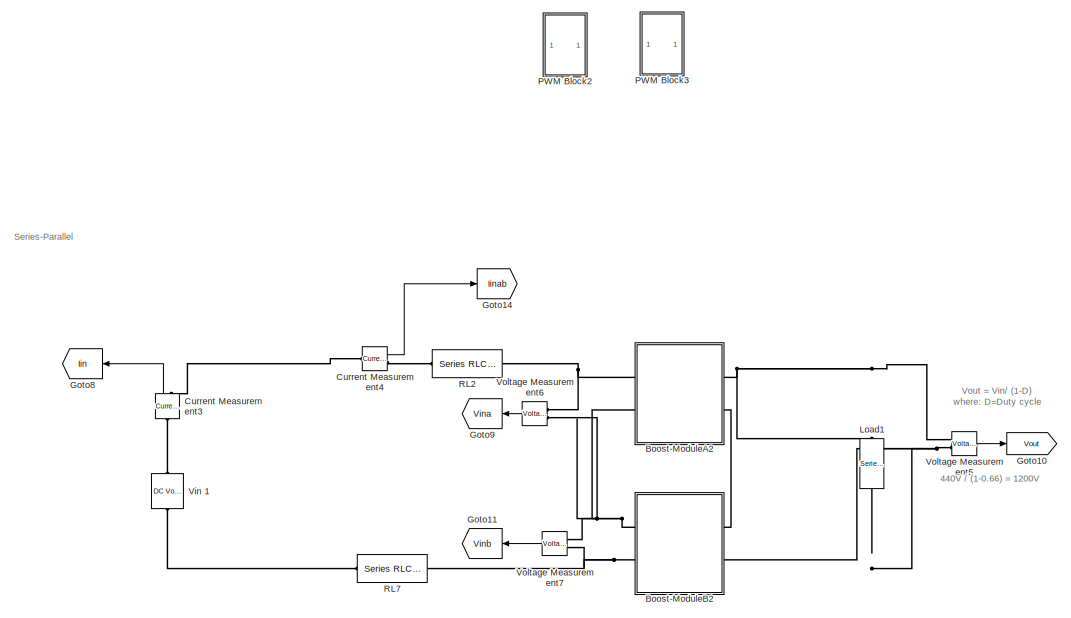
[diagram: root canvas - part 1/8, top center region]
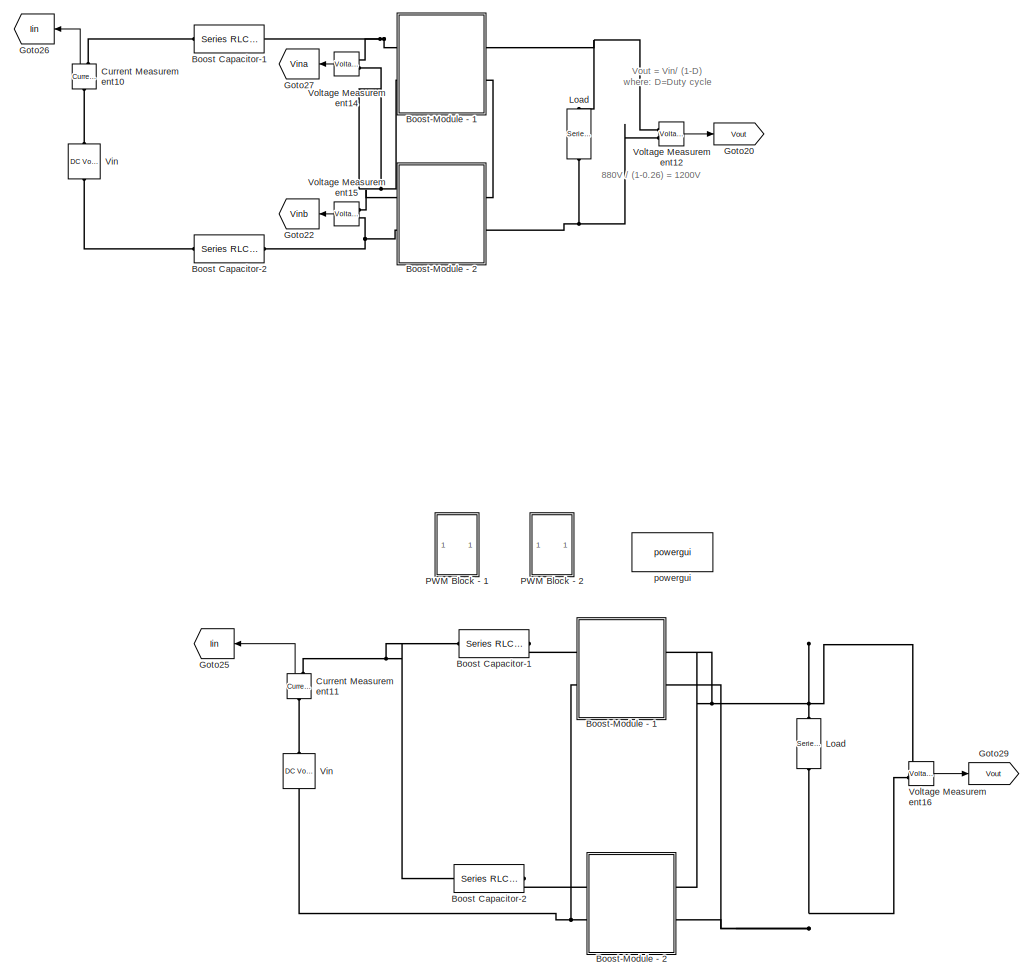
[diagram: root canvas - part 2/8, middle right region]
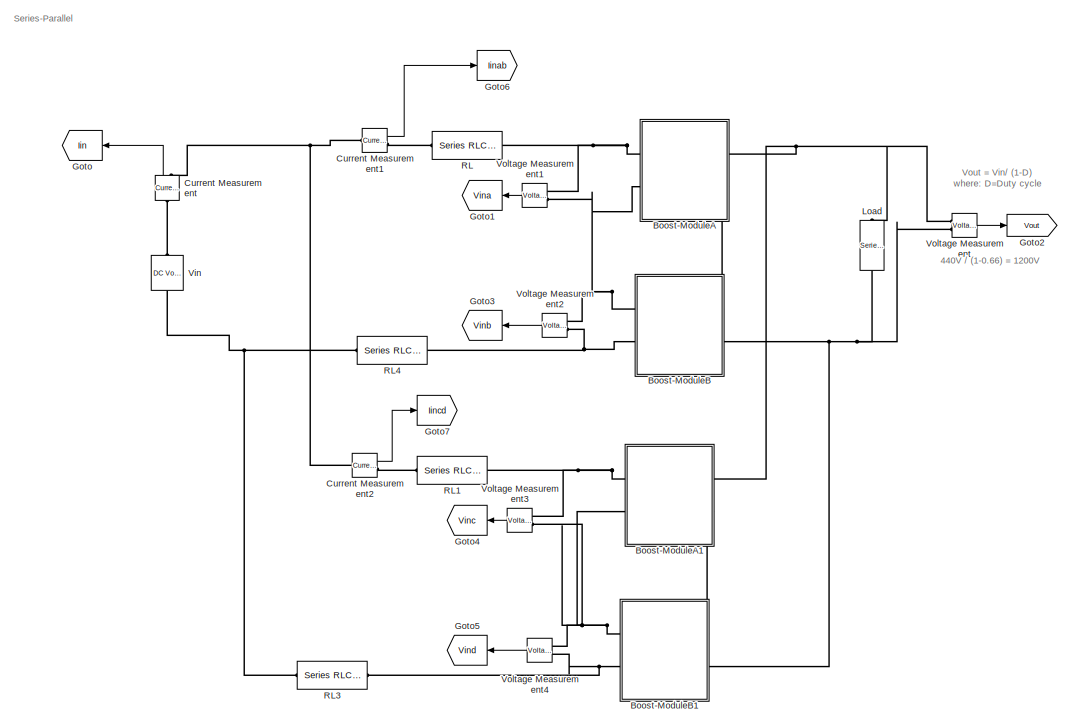
[diagram: root canvas - part 3/8, top left region]
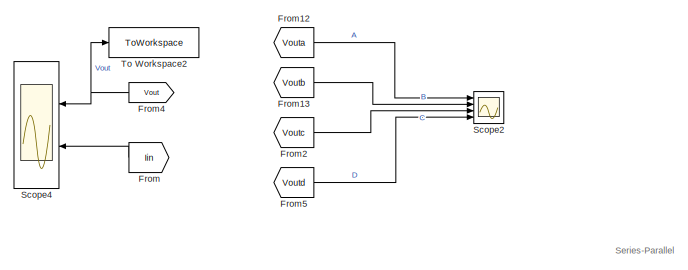
[diagram: root canvas - part 4/8, middle left region]
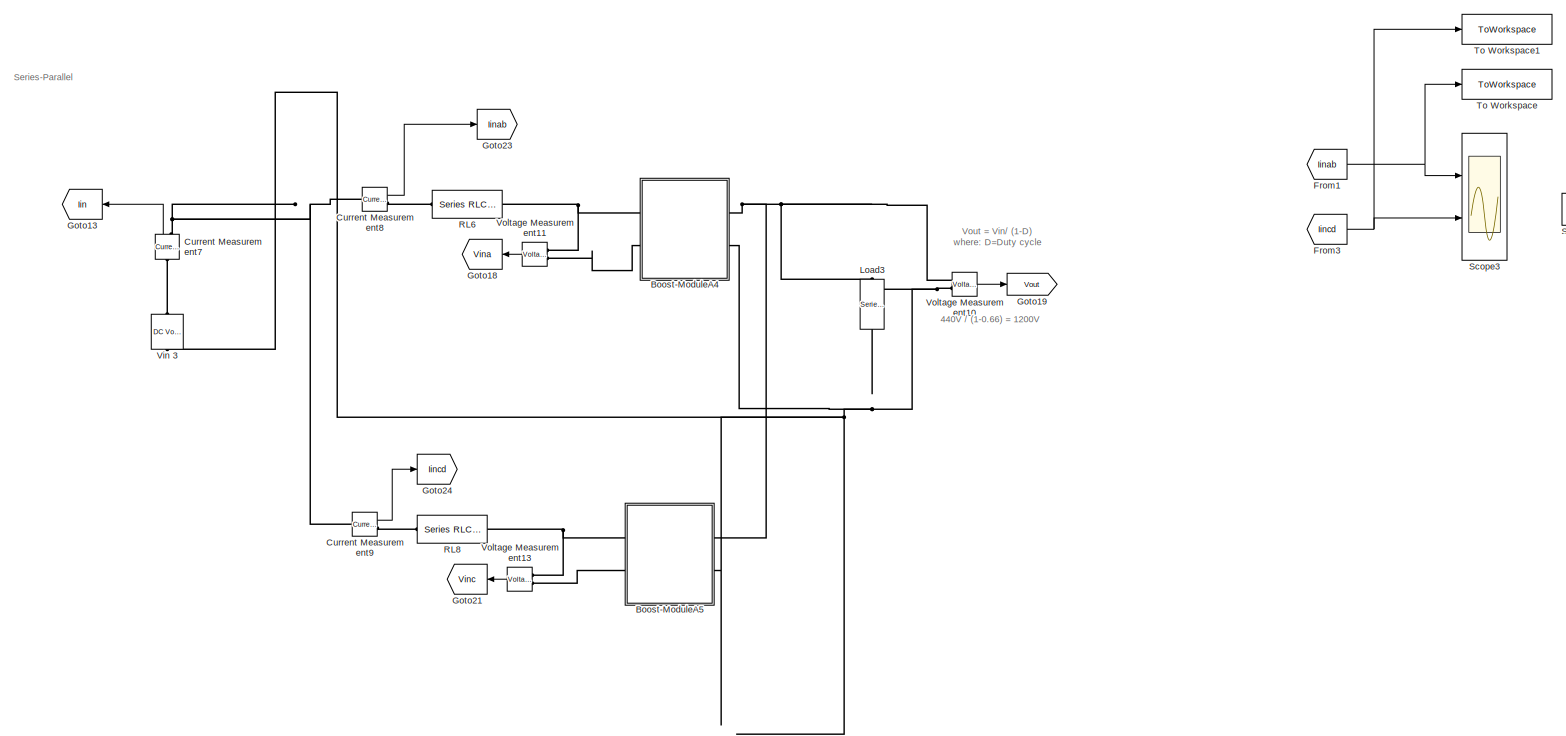
[diagram: root canvas - part 5/8, bottom center region]
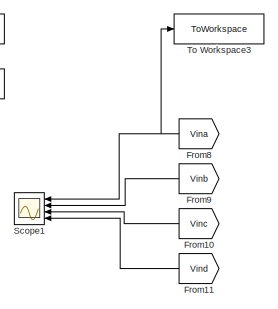
[diagram: root canvas - part 6/8, central region]
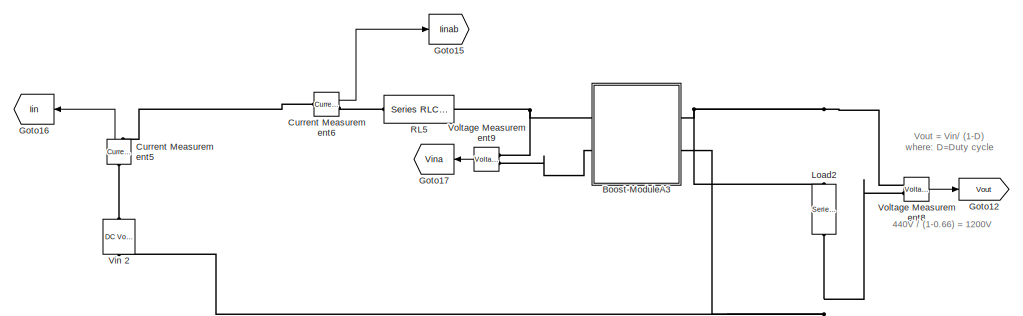
[diagram: root canvas - part 7/8, bottom left region]
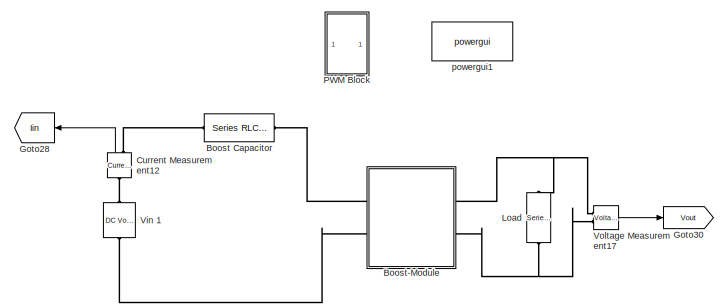
[diagram: root canvas - part 8/8, bottom right region]
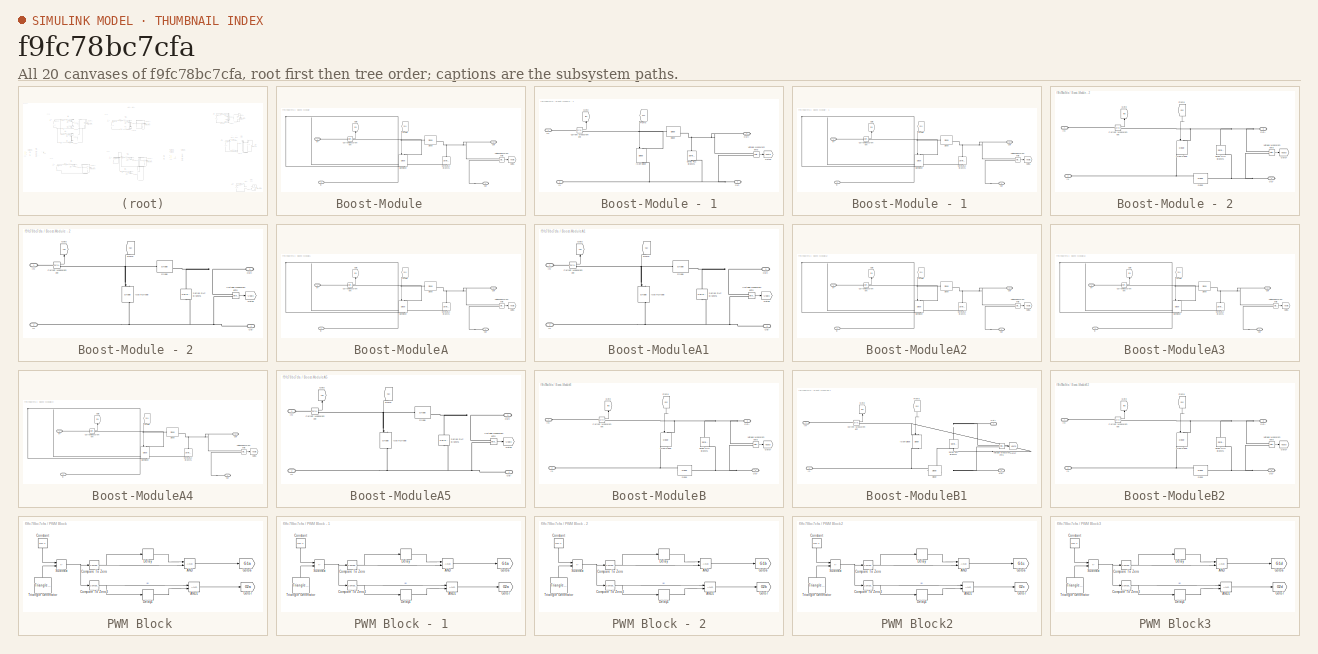
[diagram: thumbnail index - all 20 canvases of the model, root first then tree order]
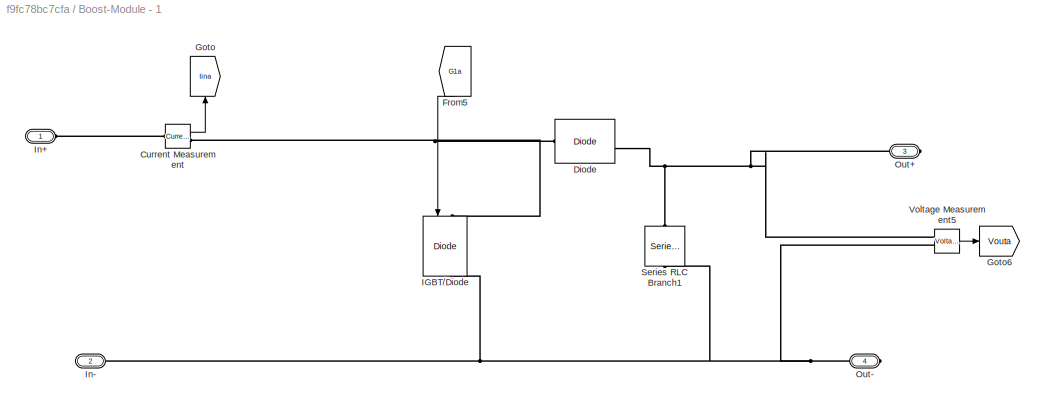
MODEL slx_f9fc78bc7cfa
KIND model
CONFIG AbsTol = auto
CONFIG EnableMultiTasking = on
CONFIG FixedStep = sampleTime
CONFIG InitFcn = boost_parameters
CONFIG MaxStep = 1e-4
CONFIG MinStep = auto
CONFIG RelTol = 1e-4
CONFIG SampleTimeConstraint = Unconstrained
CONFIG SolverName = FixedStepDiscrete
CONFIG StartTime = 0.0
CONFIG StopTime = 0.5
WORKSPACE source: mxarray member
WORKSPACE Phase1 = 0
BLOCK [Reference] Boost Capacitor     REF=spsSeriesRLCBranchLib/Series RLC Branch
  Ports = [0, 0, 0, 0, 0, 1, 1]
  SourceBlock = spsSeriesRLCBranchLib/Series RLC Branch
  SourceProductBaseCode = PS
  SourceType = Series RLC Branch
BLOCK [Reference] Boost Capacitor-1  REF=spsSeriesRLCBranchLib/Series RLC Branch
  Commented = on
  NameLocation = top
  Ports = [0, 0, 0, 0, 0, 1, 1]
  SourceBlock = spsSeriesRLCBranchLib/Series RLC Branch
  SourceProductBaseCode = PS
  SourceType = Series RLC Branch
BLOCK [Reference] Boost Capacitor-1    REF=spsSeriesRLCBranchLib/Series RLC Branch
  Commented = on
  Ports = [0, 0, 0, 0, 0, 1, 1]
  SourceBlock = spsSeriesRLCBranchLib/Series RLC Branch
  SourceProductBaseCode = PS
  SourceType = Series RLC Branch
BLOCK [Reference] Boost Capacitor-2  REF=spsSeriesRLCBranchLib/Series RLC Branch
  Commented = on
  Ports = [0, 0, 0, 0, 0, 1, 1]
  SourceBlock = spsSeriesRLCBranchLib/Series RLC Branch
  SourceProductBaseCode = PS
  SourceType = Series RLC Branch
BLOCK [Reference] Boost Capacitor-2     REF=spsSeriesRLCBranchLib/Series RLC Branch
  Commented = on
  Ports = [0, 0, 0, 0, 0, 1, 1]
  SourceBlock = spsSeriesRLCBranchLib/Series RLC Branch
  SourceProductBaseCode = PS
  SourceType = Series RLC Branch
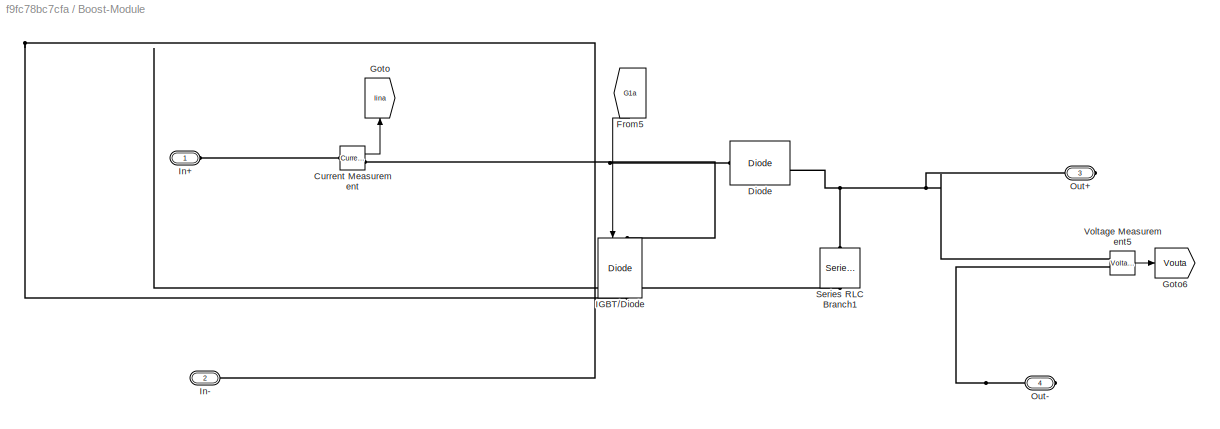
BLOCK [SubSystem] Boost-Module      
  Ports = [0, 0, 0, 0, 0, 2, 2]
  RequestExecContextInheritance = off
BLOCK [Reference] Boost-Module      /Current Measurement  REF=spsCurrentMeasurementLib/Current Measurement
  Ports = [0, 1, 0, 0, 0, 1, 1]
  SourceBlock = spsCurrentMeasurementLib/Current Measurement
  SourceProductBaseCode = PS
  SourceType = Current Measurement
  UserDataPersistent = on
BLOCK [Reference] Boost-Module      /Diode  REF=spsDiodeLib/Diode
  Ports = [0, 1, 0, 0, 0, 1, 1]
  SourceBlock = spsDiodeLib/Diode
  SourceProductBaseCode = PS
  SourceType = Diode
BLOCK [From] Boost-Module      /From5
  GotoTag = G1a
  NameLocation = left
  TagVisibility = global
BLOCK [Goto] Boost-Module      /Goto
  GotoTag = Iina
  NameLocation = right
  TagVisibility = global
BLOCK [Goto] Boost-Module      /Goto6
  GotoTag = Vouta
  NameLocation = top
  TagVisibility = global
BLOCK [Reference] Boost-Module      /IGBT//Diode  REF=spsIGBTDiodeLib/IGBT//Diode
  NameLocation = left
  Ports = [1, 1, 0, 0, 0, 1, 1]
  SourceBlock = spsIGBTDiodeLib/IGBT//Diode
  SourceProductBaseCode = PS
  SourceType = IGBT/Diode
BLOCK [PMIOPort] Boost-Module      /In+
  Side = Left
BLOCK [PMIOPort] Boost-Module      /In-
  Port = 2
  Side = Left
BLOCK [PMIOPort] Boost-Module      /Out+
  NameLocation = top
  Port = 3
  Side = Right
BLOCK [PMIOPort] Boost-Module      /Out-
  NameLocation = top
  Port = 4
  Side = Right
BLOCK [Reference] Boost-Module      /Series RLC Branch1  REF=spsSeriesRLCBranchLib/Series RLC Branch
  NameLocation = left
  Ports = [0, 0, 0, 0, 0, 1, 1]
  SourceBlock = spsSeriesRLCBranchLib/Series RLC Branch
  SourceProductBaseCode = PS
  SourceType = Series RLC Branch
BLOCK [Reference] Boost-Module      /Voltage Measurement5  REF=spsVoltageMeasurementLib/Voltage Measurement
  Ports = [0, 1, 0, 0, 0, 2]
  SourceBlock = spsVoltageMeasurementLib/Voltage Measurement
  SourceProductBaseCode = PS
  SourceType = Voltage Measurement
  UserDataPersistent = on
BLOCK [SubSystem] Boost-Module - 1
  Commented = on
  Ports = [0, 0, 0, 0, 0, 2, 2]
  RequestExecContextInheritance = off
BLOCK [SubSystem] Boost-Module - 1  
  Commented = on
  Ports = [0, 0, 0, 0, 0, 2, 2]
  RequestExecContextInheritance = off
BLOCK [Reference] Boost-Module - 1  /Current Measurement  REF=spsCurrentMeasurementLib/Current Measurement
  Ports = [0, 1, 0, 0, 0, 1, 1]
  SourceBlock = spsCurrentMeasurementLib/Current Measurement
  SourceProductBaseCode = PS
  SourceType = Current Measurement
  UserDataPersistent = on
BLOCK [Reference] Boost-Module - 1  /Diode  REF=spsDiodeLib/Diode
  Ports = [0, 1, 0, 0, 0, 1, 1]
  SourceBlock = spsDiodeLib/Diode
  SourceProductBaseCode = PS
  SourceType = Diode
BLOCK [From] Boost-Module - 1  /From5
  GotoTag = G1a
  NameLocation = left
  TagVisibility = global
BLOCK [Goto] Boost-Module - 1  /Goto
  GotoTag = Iina
  NameLocation = right
  TagVisibility = global
BLOCK [Goto] Boost-Module - 1  /Goto6
  GotoTag = Vouta
  NameLocation = top
  TagVisibility = global
BLOCK [Reference] Boost-Module - 1  /IGBT//Diode  REF=spsIGBTDiodeLib/IGBT//Diode
  NameLocation = left
  Ports = [1, 1, 0, 0, 0, 1, 1]
  SourceBlock = spsIGBTDiodeLib/IGBT//Diode
  SourceProductBaseCode = PS
  SourceType = IGBT/Diode
BLOCK [PMIOPort] Boost-Module - 1  /In+
  Side = Left
BLOCK [PMIOPort] Boost-Module - 1  /In-
  Port = 2
  Side = Left
BLOCK [PMIOPort] Boost-Module - 1  /Out+
  NameLocation = top
  Port = 3
  Side = Right
BLOCK [PMIOPort] Boost-Module - 1  /Out-
  NameLocation = top
  Port = 4
  Side = Right
BLOCK [Reference] Boost-Module - 1  /Series RLC Branch1  REF=spsSeriesRLCBranchLib/Series RLC Branch
  NameLocation = left
  Ports = [0, 0, 0, 0, 0, 1, 1]
  SourceBlock = spsSeriesRLCBranchLib/Series RLC Branch
  SourceProductBaseCode = PS
  SourceType = Series RLC Branch
BLOCK [Reference] Boost-Module - 1  /Voltage Measurement5  REF=spsVoltageMeasurementLib/Voltage Measurement
  Ports = [0, 1, 0, 0, 0, 2]
  SourceBlock = spsVoltageMeasurementLib/Voltage Measurement
  SourceProductBaseCode = PS
  SourceType = Voltage Measurement
  UserDataPersistent = on
BLOCK [Reference] Boost-Module - 1/Current Measurement  REF=spsCurrentMeasurementLib/Current Measurement
  Ports = [0, 1, 0, 0, 0, 1, 1]
  SourceBlock = spsCurrentMeasurementLib/Current Measurement
  SourceProductBaseCode = PS
  SourceType = Current Measurement
  UserDataPersistent = on
BLOCK [Reference] Boost-Module - 1/Diode  REF=spsDiodeLib/Diode
  Ports = [0, 1, 0, 0, 0, 1, 1]
  SourceBlock = spsDiodeLib/Diode
  SourceProductBaseCode = PS
  SourceType = Diode
BLOCK [From] Boost-Module - 1/From5
  GotoTag = G1a
  NameLocation = left
  TagVisibility = global
BLOCK [Goto] Boost-Module - 1/Goto
  GotoTag = Iina
  NameLocation = right
  TagVisibility = global
BLOCK [Goto] Boost-Module - 1/Goto6
  GotoTag = Vouta
  NameLocation = top
  TagVisibility = global
BLOCK [Reference] Boost-Module - 1/IGBT//Diode  REF=spsIGBTDiodeLib/IGBT//Diode
  NameLocation = left
  Ports = [1, 1, 0, 0, 0, 1, 1]
  SourceBlock = spsIGBTDiodeLib/IGBT//Diode
  SourceProductBaseCode = PS
  SourceType = IGBT/Diode
BLOCK [PMIOPort] Boost-Module - 1/In+
  Side = Left
BLOCK [PMIOPort] Boost-Module - 1/In-
  Port = 2
  Side = Left
BLOCK [PMIOPort] Boost-Module - 1/Out+
  NameLocation = top
  Port = 3
  Side = Right
BLOCK [PMIOPort] Boost-Module - 1/Out-
  NameLocation = top
  Port = 4
  Side = Right
BLOCK [Reference] Boost-Module - 1/Series RLC Branch1  REF=spsSeriesRLCBranchLib/Series RLC Branch
  NameLocation = left
  Ports = [0, 0, 0, 0, 0, 1, 1]
  SourceBlock = spsSeriesRLCBranchLib/Series RLC Branch
  SourceProductBaseCode = PS
  SourceType = Series RLC Branch
BLOCK [Reference] Boost-Module - 1/Voltage Measurement5  REF=spsVoltageMeasurementLib/Voltage Measurement
  Ports = [0, 1, 0, 0, 0, 2]
  SourceBlock = spsVoltageMeasurementLib/Voltage Measurement
  SourceProductBaseCode = PS
  SourceType = Voltage Measurement
  UserDataPersistent = on
BLOCK [SubSystem] Boost-Module - 2
  Commented = on
  Ports = [0, 0, 0, 0, 0, 2, 2]
  RequestExecContextInheritance = off
BLOCK [SubSystem] Boost-Module - 2  
  Commented = on
  Ports = [0, 0, 0, 0, 0, 2, 2]
  RequestExecContextInheritance = off
BLOCK [Reference] Boost-Module - 2  /Current Measurement  REF=spsCurrentMeasurementLib/Current Measurement
  Ports = [0, 1, 0, 0, 0, 1, 1]
  SourceBlock = spsCurrentMeasurementLib/Current Measurement
  SourceProductBaseCode = PS
  SourceType = Current Measurement
  UserDataPersistent = on
BLOCK [Reference] Boost-Module - 2  /Diode  REF=spsDiodeLib/Diode
  Ports = [0, 1, 0, 0, 0, 1, 1]
  SourceBlock = spsDiodeLib/Diode
  SourceProductBaseCode = PS
  SourceType = Diode
BLOCK [From] Boost-Module - 2  /From5
  GotoTag = G1c
  NameLocation = left
  TagVisibility = global
BLOCK [Goto] Boost-Module - 2  /Goto
  GotoTag = Iinc
  NameLocation = right
  TagVisibility = global
BLOCK [Goto] Boost-Module - 2  /Goto6
  GotoTag = Voutc
  NameLocation = top
  TagVisibility = global
BLOCK [Reference] Boost-Module - 2  /IGBT//Diode  REF=spsIGBTDiodeLib/IGBT//Diode
  NameLocation = left
  Ports = [1, 1, 0, 0, 0, 1, 1]
  SourceBlock = spsIGBTDiodeLib/IGBT//Diode
  SourceProductBaseCode = PS
  SourceType = IGBT/Diode
BLOCK [PMIOPort] Boost-Module - 2  /In+
  Side = Left
BLOCK [PMIOPort] Boost-Module - 2  /In-
  Port = 2
  Side = Left
BLOCK [PMIOPort] Boost-Module - 2  /Out+
  NameLocation = top
  Port = 3
  Side = Right
BLOCK [PMIOPort] Boost-Module - 2  /Out-
  NameLocation = top
  Port = 4
  Side = Right
BLOCK [Reference] Boost-Module - 2  /Series RLC Branch1  REF=spsSeriesRLCBranchLib/Series RLC Branch
  NameLocation = left
  Ports = [0, 0, 0, 0, 0, 1, 1]
  SourceBlock = spsSeriesRLCBranchLib/Series RLC Branch
  SourceProductBaseCode = PS
  SourceType = Series RLC Branch
BLOCK [Reference] Boost-Module - 2  /Voltage Measurement5  REF=spsVoltageMeasurementLib/Voltage Measurement
  Ports = [0, 1, 0, 0, 0, 2]
  SourceBlock = spsVoltageMeasurementLib/Voltage Measurement
  SourceProductBaseCode = PS
  SourceType = Voltage Measurement
  UserDataPersistent = on
BLOCK [Reference] Boost-Module - 2/Current Measurement  REF=spsCurrentMeasurementLib/Current Measurement
  Ports = [0, 1, 0, 0, 0, 1, 1]
  SourceBlock = spsCurrentMeasurementLib/Current Measurement
  SourceProductBaseCode = PS
  SourceType = Current Measurement
  UserDataPersistent = on
BLOCK [Reference] Boost-Module - 2/Diode  REF=spsDiodeLib/Diode
  NameLocation = top
  Ports = [0, 1, 0, 0, 0, 1, 1]
  SourceBlock = spsDiodeLib/Diode
  SourceProductBaseCode = PS
  SourceType = Diode
BLOCK [From] Boost-Module - 2/From5
  GotoTag = G1b
  NameLocation = left
  TagVisibility = global
BLOCK [Goto] Boost-Module - 2/Goto
  GotoTag = Iinb
  NameLocation = right
  TagVisibility = global
BLOCK [Goto] Boost-Module - 2/Goto7
  GotoTag = Voutb
  NameLocation = top
  TagVisibility = global
BLOCK [Reference] Boost-Module - 2/IGBT//Diode  REF=spsIGBTDiodeLib/IGBT//Diode
  NameLocation = left
  Ports = [1, 1, 0, 0, 0, 1, 1]
  SourceBlock = spsIGBTDiodeLib/IGBT//Diode
  SourceProductBaseCode = PS
  SourceType = IGBT/Diode
BLOCK [PMIOPort] Boost-Module - 2/In+
  Side = Left
BLOCK [PMIOPort] Boost-Module - 2/In-
  Port = 2
  Side = Left
BLOCK [PMIOPort] Boost-Module - 2/Out+
  NameLocation = top
  Port = 3
  Side = Right
BLOCK [PMIOPort] Boost-Module - 2/Out-
  NameLocation = top
  Port = 4
  Side = Right
BLOCK [Reference] Boost-Module - 2/Series RLC Branch1  REF=spsSeriesRLCBranchLib/Series RLC Branch
  NameLocation = left
  Ports = [0, 0, 0, 0, 0, 1, 1]
  SourceBlock = spsSeriesRLCBranchLib/Series RLC Branch
  SourceProductBaseCode = PS
  SourceType = Series RLC Branch
BLOCK [Reference] Boost-Module - 2/Voltage Measurement6  REF=spsVoltageMeasurementLib/Voltage Measurement
  Ports = [0, 1, 0, 0, 0, 2]
  SourceBlock = spsVoltageMeasurementLib/Voltage Measurement
  SourceProductBaseCode = PS
  SourceType = Voltage Measurement
  UserDataPersistent = on
BLOCK [SubSystem] Boost-ModuleA
  Commented = on
  Ports = [0, 0, 0, 0, 0, 2, 2]
  RequestExecContextInheritance = off
BLOCK [Reference] Boost-ModuleA/Current Measurement  REF=spsCurrentMeasurementLib/Current Measurement
  Ports = [0, 1, 0, 0, 0, 1, 1]
  SourceBlock = spsCurrentMeasurementLib/Current Measurement
  SourceProductBaseCode = PS
  SourceType = Current Measurement
  UserDataPersistent = on
BLOCK [Reference] Boost-ModuleA/Diode  REF=spsDiodeLib/Diode
  Ports = [0, 1, 0, 0, 0, 1, 1]
  SourceBlock = spsDiodeLib/Diode
  SourceProductBaseCode = PS
  SourceType = Diode
BLOCK [From] Boost-ModuleA/From5
  GotoTag = G1a
  NameLocation = left
  TagVisibility = global
BLOCK [Goto] Boost-ModuleA/Goto
  GotoTag = Iina
  NameLocation = right
  TagVisibility = global
BLOCK [Goto] Boost-ModuleA/Goto6
  GotoTag = Vouta
  NameLocation = top
  TagVisibility = global
BLOCK [Reference] Boost-ModuleA/IGBT//Diode  REF=spsIGBTDiodeLib/IGBT//Diode
  NameLocation = left
  Ports = [1, 1, 0, 0, 0, 1, 1]
  SourceBlock = spsIGBTDiodeLib/IGBT//Diode
  SourceProductBaseCode = PS
  SourceType = IGBT/Diode
BLOCK [PMIOPort] Boost-ModuleA/In+
  Side = Left
BLOCK [PMIOPort] Boost-ModuleA/In-
  Port = 2
  Side = Left
BLOCK [PMIOPort] Boost-ModuleA/Out+
  NameLocation = top
  Port = 3
  Side = Right
BLOCK [PMIOPort] Boost-ModuleA/Out-
  NameLocation = top
  Port = 4
  Side = Right
BLOCK [Reference] Boost-ModuleA/Series RLC Branch1  REF=spsSeriesRLCBranchLib/Series RLC Branch
  NameLocation = left
  Ports = [0, 0, 0, 0, 0, 1, 1]
  SourceBlock = spsSeriesRLCBranchLib/Series RLC Branch
  SourceProductBaseCode = PS
  SourceType = Series RLC Branch
BLOCK [Reference] Boost-ModuleA/Voltage Measurement5  REF=spsVoltageMeasurementLib/Voltage Measurement
  Ports = [0, 1, 0, 0, 0, 2]
  SourceBlock = spsVoltageMeasurementLib/Voltage Measurement
  SourceProductBaseCode = PS
  SourceType = Voltage Measurement
  UserDataPersistent = on
BLOCK [SubSystem] Boost-ModuleA1
  Commented = on
  Ports = [0, 0, 0, 0, 0, 2, 2]
  RequestExecContextInheritance = off
BLOCK [Reference] Boost-ModuleA1/Current Measurement  REF=spsCurrentMeasurementLib/Current Measurement
  Ports = [0, 1, 0, 0, 0, 1, 1]
  SourceBlock = spsCurrentMeasurementLib/Current Measurement
  SourceProductBaseCode = PS
  SourceType = Current Measurement
  UserDataPersistent = on
BLOCK [Reference] Boost-ModuleA1/Diode  REF=spsDiodeLib/Diode
  Ports = [0, 1, 0, 0, 0, 1, 1]
  SourceBlock = spsDiodeLib/Diode
  SourceProductBaseCode = PS
  SourceType = Diode
BLOCK [From] Boost-ModuleA1/From5
  GotoTag = G1c
  NameLocation = left
  TagVisibility = global
BLOCK [Goto] Boost-ModuleA1/Goto
  GotoTag = Iinc
  NameLocation = right
  TagVisibility = global
BLOCK [Goto] Boost-ModuleA1/Goto6
  GotoTag = Voutc
  NameLocation = top
  TagVisibility = global
BLOCK [Reference] Boost-ModuleA1/IGBT//Diode  REF=spsIGBTDiodeLib/IGBT//Diode
  NameLocation = left
  Ports = [1, 1, 0, 0, 0, 1, 1]
  SourceBlock = spsIGBTDiodeLib/IGBT//Diode
  SourceProductBaseCode = PS
  SourceType = IGBT/Diode
BLOCK [PMIOPort] Boost-ModuleA1/In+
  Side = Left
BLOCK [PMIOPort] Boost-ModuleA1/In-
  Port = 2
  Side = Left
BLOCK [PMIOPort] Boost-ModuleA1/Out+
  NameLocation = top
  Port = 3
  Side = Right
BLOCK [PMIOPort] Boost-ModuleA1/Out-
  NameLocation = top
  Port = 4
  Side = Right
BLOCK [Reference] Boost-ModuleA1/Series RLC Branch1  REF=spsSeriesRLCBranchLib/Series RLC Branch
  NameLocation = left
  Ports = [0, 0, 0, 0, 0, 1, 1]
  SourceBlock = spsSeriesRLCBranchLib/Series RLC Branch
  SourceProductBaseCode = PS
  SourceType = Series RLC Branch
BLOCK [Reference] Boost-ModuleA1/Voltage Measurement5  REF=spsVoltageMeasurementLib/Voltage Measurement
  Ports = [0, 1, 0, 0, 0, 2]
  SourceBlock = spsVoltageMeasurementLib/Voltage Measurement
  SourceProductBaseCode = PS
  SourceType = Voltage Measurement
  UserDataPersistent = on
BLOCK [SubSystem] Boost-ModuleA2
  Commented = on
  Ports = [0, 0, 0, 0, 0, 2, 2]
  RequestExecContextInheritance = off
BLOCK [Reference] Boost-ModuleA2/Current Measurement  REF=spsCurrentMeasurementLib/Current Measurement
  Ports = [0, 1, 0, 0, 0, 1, 1]
  SourceBlock = spsCurrentMeasurementLib/Current Measurement
  SourceProductBaseCode = PS
  SourceType = Current Measurement
  UserDataPersistent = on
BLOCK [Reference] Boost-ModuleA2/Diode  REF=spsDiodeLib/Diode
  Ports = [0, 1, 0, 0, 0, 1, 1]
  SourceBlock = spsDiodeLib/Diode
  SourceProductBaseCode = PS
  SourceType = Diode
BLOCK [From] Boost-ModuleA2/From5
  GotoTag = G1a
  NameLocation = left
  TagVisibility = global
BLOCK [Goto] Boost-ModuleA2/Goto
  GotoTag = Iina
  NameLocation = right
  TagVisibility = global
BLOCK [Goto] Boost-ModuleA2/Goto6
  GotoTag = Vouta
  NameLocation = top
  TagVisibility = global
BLOCK [Reference] Boost-ModuleA2/IGBT//Diode  REF=spsIGBTDiodeLib/IGBT//Diode
  NameLocation = left
  Ports = [1, 1, 0, 0, 0, 1, 1]
  SourceBlock = spsIGBTDiodeLib/IGBT//Diode
  SourceProductBaseCode = PS
  SourceType = IGBT/Diode
BLOCK [PMIOPort] Boost-ModuleA2/In+
  Side = Left
BLOCK [PMIOPort] Boost-ModuleA2/In-
  Port = 2
  Side = Left
BLOCK [PMIOPort] Boost-ModuleA2/Out+
  NameLocation = top
  Port = 3
  Side = Right
BLOCK [PMIOPort] Boost-ModuleA2/Out-
  NameLocation = top
  Port = 4
  Side = Right
BLOCK [Reference] Boost-ModuleA2/Series RLC Branch1  REF=spsSeriesRLCBranchLib/Series RLC Branch
  NameLocation = left
  Ports = [0, 0, 0, 0, 0, 1, 1]
  SourceBlock = spsSeriesRLCBranchLib/Series RLC Branch
  SourceProductBaseCode = PS
  SourceType = Series RLC Branch
BLOCK [Reference] Boost-ModuleA2/Voltage Measurement5  REF=spsVoltageMeasurementLib/Voltage Measurement
  Ports = [0, 1, 0, 0, 0, 2]
  SourceBlock = spsVoltageMeasurementLib/Voltage Measurement
  SourceProductBaseCode = PS
  SourceType = Voltage Measurement
  UserDataPersistent = on
BLOCK [SubSystem] Boost-ModuleA3
  Commented = on
  Ports = [0, 0, 0, 0, 0, 2, 2]
  RequestExecContextInheritance = off
BLOCK [Reference] Boost-ModuleA3/Current Measurement  REF=spsCurrentMeasurementLib/Current Measurement
  Ports = [0, 1, 0, 0, 0, 1, 1]
  SourceBlock = spsCurrentMeasurementLib/Current Measurement
  SourceProductBaseCode = PS
  SourceType = Current Measurement
  UserDataPersistent = on
BLOCK [Reference] Boost-ModuleA3/Diode  REF=spsDiodeLib/Diode
  Ports = [0, 1, 0, 0, 0, 1, 1]
  SourceBlock = spsDiodeLib/Diode
  SourceProductBaseCode = PS
  SourceType = Diode
BLOCK [From] Boost-ModuleA3/From5
  GotoTag = G1a
  NameLocation = left
  TagVisibility = global
BLOCK [Goto] Boost-ModuleA3/Goto
  GotoTag = Iina
  NameLocation = right
  TagVisibility = global
BLOCK [Goto] Boost-ModuleA3/Goto6
  GotoTag = Vouta
  NameLocation = top
  TagVisibility = global
BLOCK [Reference] Boost-ModuleA3/IGBT//Diode  REF=spsIGBTDiodeLib/IGBT//Diode
  NameLocation = left
  Ports = [1, 1, 0, 0, 0, 1, 1]
  SourceBlock = spsIGBTDiodeLib/IGBT//Diode
  SourceProductBaseCode = PS
  SourceType = IGBT/Diode
BLOCK [PMIOPort] Boost-ModuleA3/In+
  Side = Left
BLOCK [PMIOPort] Boost-ModuleA3/In-
  Port = 2
  Side = Left
BLOCK [PMIOPort] Boost-ModuleA3/Out+
  NameLocation = top
  Port = 3
  Side = Right
BLOCK [PMIOPort] Boost-ModuleA3/Out-
  NameLocation = top
  Port = 4
  Side = Right
BLOCK [Reference] Boost-ModuleA3/Series RLC Branch1  REF=spsSeriesRLCBranchLib/Series RLC Branch
  NameLocation = left
  Ports = [0, 0, 0, 0, 0, 1, 1]
  SourceBlock = spsSeriesRLCBranchLib/Series RLC Branch
  SourceProductBaseCode = PS
  SourceType = Series RLC Branch
BLOCK [Reference] Boost-ModuleA3/Voltage Measurement5  REF=spsVoltageMeasurementLib/Voltage Measurement
  Ports = [0, 1, 0, 0, 0, 2]
  SourceBlock = spsVoltageMeasurementLib/Voltage Measurement
  SourceProductBaseCode = PS
  SourceType = Voltage Measurement
  UserDataPersistent = on
BLOCK [SubSystem] Boost-ModuleA4
  Commented = on
  Ports = [0, 0, 0, 0, 0, 2, 2]
  RequestExecContextInheritance = off
BLOCK [Reference] Boost-ModuleA4/Current Measurement  REF=spsCurrentMeasurementLib/Current Measurement
  Ports = [0, 1, 0, 0, 0, 1, 1]
  SourceBlock = spsCurrentMeasurementLib/Current Measurement
  SourceProductBaseCode = PS
  SourceType = Current Measurement
  UserDataPersistent = on
BLOCK [Reference] Boost-ModuleA4/Diode  REF=spsDiodeLib/Diode
  Ports = [0, 1, 0, 0, 0, 1, 1]
  SourceBlock = spsDiodeLib/Diode
  SourceProductBaseCode = PS
  SourceType = Diode
BLOCK [From] Boost-ModuleA4/From5
  GotoTag = G1a
  NameLocation = left
  TagVisibility = global
BLOCK [Goto] Boost-ModuleA4/Goto
  GotoTag = Iina
  NameLocation = right
  TagVisibility = global
BLOCK [Goto] Boost-ModuleA4/Goto6
  GotoTag = Vouta
  NameLocation = top
  TagVisibility = global
BLOCK [Reference] Boost-ModuleA4/IGBT//Diode  REF=spsIGBTDiodeLib/IGBT//Diode
  NameLocation = left
  Ports = [1, 1, 0, 0, 0, 1, 1]
  SourceBlock = spsIGBTDiodeLib/IGBT//Diode
  SourceProductBaseCode = PS
  SourceType = IGBT/Diode
BLOCK [PMIOPort] Boost-ModuleA4/In+
  Side = Left
BLOCK [PMIOPort] Boost-ModuleA4/In-
  Port = 2
  Side = Left
BLOCK [PMIOPort] Boost-ModuleA4/Out+
  NameLocation = top
  Port = 3
  Side = Right
BLOCK [PMIOPort] Boost-ModuleA4/Out-
  NameLocation = top
  Port = 4
  Side = Right
BLOCK [Reference] Boost-ModuleA4/Series RLC Branch1  REF=spsSeriesRLCBranchLib/Series RLC Branch
  NameLocation = left
  Ports = [0, 0, 0, 0, 0, 1, 1]
  SourceBlock = spsSeriesRLCBranchLib/Series RLC Branch
  SourceProductBaseCode = PS
  SourceType = Series RLC Branch
BLOCK [Reference] Boost-ModuleA4/Voltage Measurement5  REF=spsVoltageMeasurementLib/Voltage Measurement
  Ports = [0, 1, 0, 0, 0, 2]
  SourceBlock = spsVoltageMeasurementLib/Voltage Measurement
  SourceProductBaseCode = PS
  SourceType = Voltage Measurement
  UserDataPersistent = on
BLOCK [SubSystem] Boost-ModuleA5
  Commented = on
  Ports = [0, 0, 0, 0, 0, 2, 2]
  RequestExecContextInheritance = off
BLOCK [Reference] Boost-ModuleA5/Current Measurement  REF=spsCurrentMeasurementLib/Current Measurement
  Ports = [0, 1, 0, 0, 0, 1, 1]
  SourceBlock = spsCurrentMeasurementLib/Current Measurement
  SourceProductBaseCode = PS
  SourceType = Current Measurement
  UserDataPersistent = on
BLOCK [Reference] Boost-ModuleA5/Diode  REF=spsDiodeLib/Diode
  Ports = [0, 1, 0, 0, 0, 1, 1]
  SourceBlock = spsDiodeLib/Diode
  SourceProductBaseCode = PS
  SourceType = Diode
BLOCK [From] Boost-ModuleA5/From5
  GotoTag = G1c
  NameLocation = left
  TagVisibility = global
BLOCK [Goto] Boost-ModuleA5/Goto
  GotoTag = Iinc
  NameLocation = right
  TagVisibility = global
BLOCK [Goto] Boost-ModuleA5/Goto6
  GotoTag = Voutc
  NameLocation = top
  TagVisibility = global
BLOCK [Reference] Boost-ModuleA5/IGBT//Diode  REF=spsIGBTDiodeLib/IGBT//Diode
  NameLocation = left
  Ports = [1, 1, 0, 0, 0, 1, 1]
  SourceBlock = spsIGBTDiodeLib/IGBT//Diode
  SourceProductBaseCode = PS
  SourceType = IGBT/Diode
BLOCK [PMIOPort] Boost-ModuleA5/In+
  Side = Left
BLOCK [PMIOPort] Boost-ModuleA5/In-
  Port = 2
  Side = Left
BLOCK [PMIOPort] Boost-ModuleA5/Out+
  NameLocation = top
  Port = 3
  Side = Right
BLOCK [PMIOPort] Boost-ModuleA5/Out-
  NameLocation = top
  Port = 4
  Side = Right
BLOCK [Reference] Boost-ModuleA5/Series RLC Branch1  REF=spsSeriesRLCBranchLib/Series RLC Branch
  NameLocation = left
  Ports = [0, 0, 0, 0, 0, 1, 1]
  SourceBlock = spsSeriesRLCBranchLib/Series RLC Branch
  SourceProductBaseCode = PS
  SourceType = Series RLC Branch
BLOCK [Reference] Boost-ModuleA5/Voltage Measurement5  REF=spsVoltageMeasurementLib/Voltage Measurement
  Ports = [0, 1, 0, 0, 0, 2]
  SourceBlock = spsVoltageMeasurementLib/Voltage Measurement
  SourceProductBaseCode = PS
  SourceType = Voltage Measurement
  UserDataPersistent = on
BLOCK [SubSystem] Boost-ModuleB
  Commented = on
  Ports = [0, 0, 0, 0, 0, 2, 2]
  RequestExecContextInheritance = off
BLOCK [Reference] Boost-ModuleB/Current Measurement  REF=spsCurrentMeasurementLib/Current Measurement
  Ports = [0, 1, 0, 0, 0, 1, 1]
  SourceBlock = spsCurrentMeasurementLib/Current Measurement
  SourceProductBaseCode = PS
  SourceType = Current Measurement
  UserDataPersistent = on
BLOCK [Reference] Boost-ModuleB/Diode  REF=spsDiodeLib/Diode
  NameLocation = top
  Ports = [0, 1, 0, 0, 0, 1, 1]
  SourceBlock = spsDiodeLib/Diode
  SourceProductBaseCode = PS
  SourceType = Diode
BLOCK [From] Boost-ModuleB/From5
  GotoTag = G1b
  NameLocation = left
  TagVisibility = global
BLOCK [Goto] Boost-ModuleB/Goto
  GotoTag = Iinb
  NameLocation = right
  TagVisibility = global
BLOCK [Goto] Boost-ModuleB/Goto7
  GotoTag = Voutb
  NameLocation = top
  TagVisibility = global
BLOCK [Reference] Boost-ModuleB/IGBT//Diode  REF=spsIGBTDiodeLib/IGBT//Diode
  NameLocation = left
  Ports = [1, 1, 0, 0, 0, 1, 1]
  SourceBlock = spsIGBTDiodeLib/IGBT//Diode
  SourceProductBaseCode = PS
  SourceType = IGBT/Diode
BLOCK [PMIOPort] Boost-ModuleB/In+
  Side = Left
BLOCK [PMIOPort] Boost-ModuleB/In-
  Port = 2
  Side = Left
BLOCK [PMIOPort] Boost-ModuleB/Out+
  NameLocation = top
  Port = 3
  Side = Right
BLOCK [PMIOPort] Boost-ModuleB/Out-
  NameLocation = top
  Port = 4
  Side = Right
BLOCK [Reference] Boost-ModuleB/Series RLC Branch1  REF=spsSeriesRLCBranchLib/Series RLC Branch
  NameLocation = left
  Ports = [0, 0, 0, 0, 0, 1, 1]
  SourceBlock = spsSeriesRLCBranchLib/Series RLC Branch
  SourceProductBaseCode = PS
  SourceType = Series RLC Branch
BLOCK [Reference] Boost-ModuleB/Voltage Measurement6  REF=spsVoltageMeasurementLib/Voltage Measurement
  Ports = [0, 1, 0, 0, 0, 2]
  SourceBlock = spsVoltageMeasurementLib/Voltage Measurement
  SourceProductBaseCode = PS
  SourceType = Voltage Measurement
  UserDataPersistent = on
BLOCK [SubSystem] Boost-ModuleB1
  Commented = on
  Ports = [0, 0, 0, 0, 0, 2, 2]
  RequestExecContextInheritance = off
BLOCK [Reference] Boost-ModuleB1/Current Measurement  REF=spsCurrentMeasurementLib/Current Measurement
  Ports = [0, 1, 0, 0, 0, 1, 1]
  SourceBlock = spsCurrentMeasurementLib/Current Measurement
  SourceProductBaseCode = PS
  SourceType = Current Measurement
  UserDataPersistent = on
BLOCK [Reference] Boost-ModuleB1/Diode  REF=spsDiodeLib/Diode
  NameLocation = top
  Ports = [0, 1, 0, 0, 0, 1, 1]
  SourceBlock = spsDiodeLib/Diode
  SourceProductBaseCode = PS
  SourceType = Diode
BLOCK [From] Boost-ModuleB1/From5
  GotoTag = G1d
  NameLocation = left
  TagVisibility = global
BLOCK [Goto] Boost-ModuleB1/Goto
  GotoTag = Iind
  NameLocation = right
  TagVisibility = global
BLOCK [Goto] Boost-ModuleB1/Goto7
  GotoTag = Voutd
  NameLocation = top
  TagVisibility = global
BLOCK [Reference] Boost-ModuleB1/IGBT//Diode  REF=spsIGBTDiodeLib/IGBT//Diode
  NameLocation = left
  Ports = [1, 1, 0, 0, 0, 1, 1]
  SourceBlock = spsIGBTDiodeLib/IGBT//Diode
  SourceProductBaseCode = PS
  SourceType = IGBT/Diode
BLOCK [PMIOPort] Boost-ModuleB1/In+
  Side = Left
BLOCK [PMIOPort] Boost-ModuleB1/In-
  Port = 2
  Side = Left
BLOCK [PMIOPort] Boost-ModuleB1/Out+
  NameLocation = top
  Port = 3
  Side = Right
BLOCK [PMIOPort] Boost-ModuleB1/Out-
  NameLocation = top
  Port = 4
  Side = Right
BLOCK [Reference] Boost-ModuleB1/Series RLC Branch1  REF=spsSeriesRLCBranchLib/Series RLC Branch
  NameLocation = left
  Ports = [0, 0, 0, 0, 0, 1, 1]
  SourceBlock = spsSeriesRLCBranchLib/Series RLC Branch
  SourceProductBaseCode = PS
  SourceType = Series RLC Branch
BLOCK [Reference] Boost-ModuleB1/Voltage Measurement6  REF=spsVoltageMeasurementLib/Voltage Measurement
  Ports = [0, 1, 0, 0, 0, 2]
  SourceBlock = spsVoltageMeasurementLib/Voltage Measurement
  SourceProductBaseCode = PS
  SourceType = Voltage Measurement
  UserDataPersistent = on
BLOCK [SubSystem] Boost-ModuleB2
  Commented = on
  Ports = [0, 0, 0, 0, 0, 2, 2]
  RequestExecContextInheritance = off
BLOCK [Reference] Boost-ModuleB2/Current Measurement  REF=spsCurrentMeasurementLib/Current Measurement
  Ports = [0, 1, 0, 0, 0, 1, 1]
  SourceBlock = spsCurrentMeasurementLib/Current Measurement
  SourceProductBaseCode = PS
  SourceType = Current Measurement
  UserDataPersistent = on
BLOCK [Reference] Boost-ModuleB2/Diode  REF=spsDiodeLib/Diode
  NameLocation = top
  Ports = [0, 1, 0, 0, 0, 1, 1]
  SourceBlock = spsDiodeLib/Diode
  SourceProductBaseCode = PS
  SourceType = Diode
BLOCK [From] Boost-ModuleB2/From5
  GotoTag = G1b
  NameLocation = left
  TagVisibility = global
BLOCK [Goto] Boost-ModuleB2/Goto
  GotoTag = Iinb
  NameLocation = right
  TagVisibility = global
BLOCK [Goto] Boost-ModuleB2/Goto7
  GotoTag = Voutb
  NameLocation = top
  TagVisibility = global
BLOCK [Reference] Boost-ModuleB2/IGBT//Diode  REF=spsIGBTDiodeLib/IGBT//Diode
  NameLocation = left
  Ports = [1, 1, 0, 0, 0, 1, 1]
  SourceBlock = spsIGBTDiodeLib/IGBT//Diode
  SourceProductBaseCode = PS
  SourceType = IGBT/Diode
BLOCK [PMIOPort] Boost-ModuleB2/In+
  Side = Left
BLOCK [PMIOPort] Boost-ModuleB2/In-
  Port = 2
  Side = Left
BLOCK [PMIOPort] Boost-ModuleB2/Out+
  NameLocation = top
  Port = 3
  Side = Right
BLOCK [PMIOPort] Boost-ModuleB2/Out-
  NameLocation = top
  Port = 4
  Side = Right
BLOCK [Reference] Boost-ModuleB2/Series RLC Branch1  REF=spsSeriesRLCBranchLib/Series RLC Branch
  NameLocation = left
  Ports = [0, 0, 0, 0, 0, 1, 1]
  SourceBlock = spsSeriesRLCBranchLib/Series RLC Branch
  SourceProductBaseCode = PS
  SourceType = Series RLC Branch
BLOCK [Reference] Boost-ModuleB2/Voltage Measurement6  REF=spsVoltageMeasurementLib/Voltage Measurement
  Ports = [0, 1, 0, 0, 0, 2]
  SourceBlock = spsVoltageMeasurementLib/Voltage Measurement
  SourceProductBaseCode = PS
  SourceType = Voltage Measurement
  UserDataPersistent = on
BLOCK [Reference] Current Measurement  REF=spsCurrentMeasurementLib/Current Measurement
  Commented = on
  NameLocation = right
  Ports = [0, 1, 0, 0, 0, 1, 1]
  SourceBlock = spsCurrentMeasurementLib/Current Measurement
  SourceProductBaseCode = PS
  SourceType = Current Measurement
  UserDataPersistent = on
BLOCK [Reference] Current Measurement1  REF=spsCurrentMeasurementLib/Current Measurement
  Commented = on
  Ports = [0, 1, 0, 0, 0, 1, 1]
  SourceBlock = spsCurrentMeasurementLib/Current Measurement
  SourceProductBaseCode = PS
  SourceType = Current Measurement
  UserDataPersistent = on
BLOCK [Reference] Current Measurement10  REF=spsCurrentMeasurementLib/Current Measurement
  Commented = on
  NameLocation = right
  Ports = [0, 1, 0, 0, 0, 1, 1]
  SourceBlock = spsCurrentMeasurementLib/Current Measurement
  SourceProductBaseCode = PS
  SourceType = Current Measurement
  UserDataPersistent = on
BLOCK [Reference] Current Measurement11  REF=spsCurrentMeasurementLib/Current Measurement
  Commented = on
  NameLocation = right
  Ports = [0, 1, 0, 0, 0, 1, 1]
  SourceBlock = spsCurrentMeasurementLib/Current Measurement
  SourceProductBaseCode = PS
  SourceType = Current Measurement
  UserDataPersistent = on
BLOCK [Reference] Current Measurement12  REF=spsCurrentMeasurementLib/Current Measurement
  NameLocation = right
  Ports = [0, 1, 0, 0, 0, 1, 1]
  SourceBlock = spsCurrentMeasurementLib/Current Measurement
  SourceProductBaseCode = PS
  SourceType = Current Measurement
  UserDataPersistent = on
BLOCK [Reference] Current Measurement2  REF=spsCurrentMeasurementLib/Current Measurement
  Commented = on
  Ports = [0, 1, 0, 0, 0, 1, 1]
  SourceBlock = spsCurrentMeasurementLib/Current Measurement
  SourceProductBaseCode = PS
  SourceType = Current Measurement
  UserDataPersistent = on
BLOCK [Reference] Current Measurement3  REF=spsCurrentMeasurementLib/Current Measurement
  Commented = on
  NameLocation = right
  Ports = [0, 1, 0, 0, 0, 1, 1]
  SourceBlock = spsCurrentMeasurementLib/Current Measurement
  SourceProductBaseCode = PS
  SourceType = Current Measurement
  UserDataPersistent = on
BLOCK [Reference] Current Measurement4  REF=spsCurrentMeasurementLib/Current Measurement
  Commented = on
  Ports = [0, 1, 0, 0, 0, 1, 1]
  SourceBlock = spsCurrentMeasurementLib/Current Measurement
  SourceProductBaseCode = PS
  SourceType = Current Measurement
  UserDataPersistent = on
BLOCK [Reference] Current Measurement5  REF=spsCurrentMeasurementLib/Current Measurement
  Commented = on
  NameLocation = right
  Ports = [0, 1, 0, 0, 0, 1, 1]
  SourceBlock = spsCurrentMeasurementLib/Current Measurement
  SourceProductBaseCode = PS
  SourceType = Current Measurement
  UserDataPersistent = on
BLOCK [Reference] Current Measurement6  REF=spsCurrentMeasurementLib/Current Measurement
  Commented = on
  Ports = [0, 1, 0, 0, 0, 1, 1]
  SourceBlock = spsCurrentMeasurementLib/Current Measurement
  SourceProductBaseCode = PS
  SourceType = Current Measurement
  UserDataPersistent = on
BLOCK [Reference] Current Measurement7  REF=spsCurrentMeasurementLib/Current Measurement
  Commented = on
  NameLocation = right
  Ports = [0, 1, 0, 0, 0, 1, 1]
  SourceBlock = spsCurrentMeasurementLib/Current Measurement
  SourceProductBaseCode = PS
  SourceType = Current Measurement
  UserDataPersistent = on
BLOCK [Reference] Current Measurement8  REF=spsCurrentMeasurementLib/Current Measurement
  Commented = on
  Ports = [0, 1, 0, 0, 0, 1, 1]
  SourceBlock = spsCurrentMeasurementLib/Current Measurement
  SourceProductBaseCode = PS
  SourceType = Current Measurement
  UserDataPersistent = on
BLOCK [Reference] Current Measurement9  REF=spsCurrentMeasurementLib/Current Measurement
  Commented = on
  Ports = [0, 1, 0, 0, 0, 1, 1]
  SourceBlock = spsCurrentMeasurementLib/Current Measurement
  SourceProductBaseCode = PS
  SourceType = Current Measurement
  UserDataPersistent = on
BLOCK [From] From
  GotoTag = Iin
BLOCK [From] From1
  GotoTag = Iinab
BLOCK [From] From10
  GotoTag = Vinc
BLOCK [From] From11
  GotoTag = Vind
BLOCK [From] From12
  GotoTag = Vouta
  TagVisibility = global
BLOCK [From] From13
  GotoTag = Voutb
  TagVisibility = global
BLOCK [From] From2
  GotoTag = Voutc
BLOCK [From] From3
  GotoTag = Iincd
BLOCK [From] From4
  GotoTag = Vout
  NameLocation = top
BLOCK [From] From5
  GotoTag = Voutd
BLOCK [From] From8
  GotoTag = Vina
BLOCK [From] From9
  GotoTag = Vinb
BLOCK [Goto] Goto
  Commented = on
  GotoTag = Iin
  NameLocation = top
BLOCK [Goto] Goto1
  Commented = on
  GotoTag = Vina
  NameLocation = top
BLOCK [Goto] Goto10
  Commented = on
  GotoTag = Vout
BLOCK [Goto] Goto11
  Commented = on
  GotoTag = Vinb
  NameLocation = top
BLOCK [Goto] Goto12
  Commented = on
  GotoTag = Vout
BLOCK [Goto] Goto13
  Commented = on
  GotoTag = Iin
  NameLocation = top
BLOCK [Goto] Goto14
  Commented = on
  GotoTag = Iinab
BLOCK [Goto] Goto15
  Commented = on
  GotoTag = Iinab
BLOCK [Goto] Goto16
  Commented = on
  GotoTag = Iin
  NameLocation = top
BLOCK [Goto] Goto17
  Commented = on
  GotoTag = Vina
  NameLocation = top
BLOCK [Goto] Goto18
  Commented = on
  GotoTag = Vina
  NameLocation = top
BLOCK [Goto] Goto19
  Commented = on
  GotoTag = Vout
BLOCK [Goto] Goto2
  Commented = on
  GotoTag = Vout
BLOCK [Goto] Goto20
  Commented = on
  GotoTag = Vout
BLOCK [Goto] Goto21
  Commented = on
  GotoTag = Vinc
  NameLocation = top
BLOCK [Goto] Goto22
  Commented = on
  GotoTag = Vinb
  NameLocation = top
BLOCK [Goto] Goto23
  Commented = on
  GotoTag = Iinab
BLOCK [Goto] Goto24
  Commented = on
  GotoTag = Iincd
BLOCK [Goto] Goto25
  Commented = on
  GotoTag = Iin
  NameLocation = top
BLOCK [Goto] Goto26
  Commented = on
  GotoTag = Iin
  NameLocation = top
BLOCK [Goto] Goto27
  Commented = on
  GotoTag = Vina
  NameLocation = top
BLOCK [Goto] Goto28
  GotoTag = Iin
  NameLocation = top
BLOCK [Goto] Goto29
  Commented = on
  GotoTag = Vout
BLOCK [Goto] Goto3
  Commented = on
  GotoTag = Vinb
  NameLocation = top
BLOCK [Goto] Goto30
  GotoTag = Vout
BLOCK [Goto] Goto4
  Commented = on
  GotoTag = Vinc
  NameLocation = top
BLOCK [Goto] Goto5
  Commented = on
  GotoTag = Vind
  NameLocation = top
BLOCK [Goto] Goto6
  Commented = on
  GotoTag = Iinab
BLOCK [Goto] Goto7
  Commented = on
  GotoTag = Iincd
BLOCK [Goto] Goto8
  Commented = on
  GotoTag = Iin
  NameLocation = top
BLOCK [Goto] Goto9
  Commented = on
  GotoTag = Vina
  NameLocation = top
BLOCK [Reference] Load  REF=spsSeriesRLCBranchLib/Series RLC Branch
  Commented = on
  NameLocation = left
  Ports = [0, 0, 0, 0, 0, 1, 1]
  SourceBlock = spsSeriesRLCBranchLib/Series RLC Branch
  SourceProductBaseCode = PS
  SourceType = Series RLC Branch
BLOCK [Reference] Load    REF=spsSeriesRLCBranchLib/Series RLC Branch
  Commented = on
  NameLocation = left
  Ports = [0, 0, 0, 0, 0, 1, 1]
  SourceBlock = spsSeriesRLCBranchLib/Series RLC Branch
  SourceProductBaseCode = PS
  SourceType = Series RLC Branch
BLOCK [Reference] Load      REF=spsSeriesRLCBranchLib/Series RLC Branch
  Commented = on
  NameLocation = left
  Ports = [0, 0, 0, 0, 0, 1, 1]
  SourceBlock = spsSeriesRLCBranchLib/Series RLC Branch
  SourceProductBaseCode = PS
  SourceType = Series RLC Branch
BLOCK [Reference] Load       REF=spsSeriesRLCBranchLib/Series RLC Branch
  NameLocation = left
  Ports = [0, 0, 0, 0, 0, 1, 1]
  SourceBlock = spsSeriesRLCBranchLib/Series RLC Branch
  SourceProductBaseCode = PS
  SourceType = Series RLC Branch
BLOCK [Reference] Load1  REF=spsSeriesRLCBranchLib/Series RLC Branch
  Commented = on
  NameLocation = left
  Ports = [0, 0, 0, 0, 0, 1, 1]
  SourceBlock = spsSeriesRLCBranchLib/Series RLC Branch
  SourceProductBaseCode = PS
  SourceType = Series RLC Branch
BLOCK [Reference] Load2  REF=spsSeriesRLCBranchLib/Series RLC Branch
  Commented = on
  NameLocation = left
  Ports = [0, 0, 0, 0, 0, 1, 1]
  SourceBlock = spsSeriesRLCBranchLib/Series RLC Branch
  SourceProductBaseCode = PS
  SourceType = Series RLC Branch
BLOCK [Reference] Load3  REF=spsSeriesRLCBranchLib/Series RLC Branch
  Commented = on
  NameLocation = left
  Ports = [0, 0, 0, 0, 0, 1, 1]
  SourceBlock = spsSeriesRLCBranchLib/Series RLC Branch
  SourceProductBaseCode = PS
  SourceType = Series RLC Branch
BLOCK [SubSystem] PWM Block 
  Ports = []
  RequestExecContextInheritance = off
BLOCK [SubSystem] PWM Block - 1
  Commented = on
  Ports = []
  RequestExecContextInheritance = off
BLOCK [Logic] PWM Block - 1/AND
  AllPortsSameDT = off
  IconShape = distinctive
  OutDataTypeStr = boolean
  Ports = [2, 1]
BLOCK [Logic] PWM Block - 1/AND1
  AllPortsSameDT = off
  IconShape = distinctive
  OutDataTypeStr = boolean
  Ports = [2, 1]
BLOCK [Reference] PWM Block - 1/Compare To Zero  REF=simulink/Logic and Bit
Operations/Compare
To Zero
  Ports = [1, 1]
  SourceBlock = simulink/Logic and Bit\nOperations/Compare\nTo Zero
  SourceProductBaseCode = SL
  SourceType = Compare To Zero
BLOCK [Reference] PWM Block - 1/Compare To Zero3  REF=simulink/Logic and Bit
Operations/Compare
To Zero
  Ports = [1, 1]
  SourceBlock = simulink/Logic and Bit\nOperations/Compare\nTo Zero
  SourceProductBaseCode = SL
  SourceType = Compare To Zero
BLOCK [Constant] PWM Block - 1/Constant
  NameLocation = left
  Value = 2*D-1
BLOCK [Delay] PWM Block - 1/Delay
  InputPortMap = u0
  Ports = [1, 1]
BLOCK [Delay] PWM Block - 1/Delay1
  InputPortMap = u0
  Ports = [1, 1]
BLOCK [Goto] PWM Block - 1/Goto6
  GotoTag = G1a
  TagVisibility = global
BLOCK [Goto] PWM Block - 1/Goto7
  GotoTag = G2a
  TagVisibility = global
BLOCK [Sum] PWM Block - 1/Subtract
  IconShape = rectangular
  Inputs = +-
  Ports = [2, 1]
BLOCK [Reference] PWM Block - 1/Triangle Generator  REF=spsTriangleGeneratorLib/Triangle
Generator
  NameLocation = right
  Ports = [0, 1]
  SourceBlock = spsTriangleGeneratorLib/Triangle\nGenerator
  SourceProductBaseCode = PS
  SourceType = Triangle Generator
BLOCK [SubSystem] PWM Block - 2
  Commented = on
  Ports = []
  RequestExecContextInheritance = off
BLOCK [Logic] PWM Block - 2/AND
  AllPortsSameDT = off
  IconShape = distinctive
  OutDataTypeStr = boolean
  Ports = [2, 1]
BLOCK [Logic] PWM Block - 2/AND1
  AllPortsSameDT = off
  IconShape = distinctive
  OutDataTypeStr = boolean
  Ports = [2, 1]
BLOCK [Reference] PWM Block - 2/Compare To Zero  REF=simulink/Logic and Bit
Operations/Compare
To Zero
  Ports = [1, 1]
  SourceBlock = simulink/Logic and Bit\nOperations/Compare\nTo Zero
  SourceProductBaseCode = SL
  SourceType = Compare To Zero
BLOCK [Reference] PWM Block - 2/Compare To Zero3  REF=simulink/Logic and Bit
Operations/Compare
To Zero
  Ports = [1, 1]
  SourceBlock = simulink/Logic and Bit\nOperations/Compare\nTo Zero
  SourceProductBaseCode = SL
  SourceType = Compare To Zero
BLOCK [Constant] PWM Block - 2/Constant
  NameLocation = left
  Value = 2*D-1
BLOCK [Delay] PWM Block - 2/Delay
  InputPortMap = u0
  Ports = [1, 1]
BLOCK [Delay] PWM Block - 2/Delay1
  InputPortMap = u0
  Ports = [1, 1]
BLOCK [Goto] PWM Block - 2/Goto6
  GotoTag = G1b
  TagVisibility = global
BLOCK [Goto] PWM Block - 2/Goto7
  GotoTag = G2b
  TagVisibility = global
BLOCK [Sum] PWM Block - 2/Subtract
  IconShape = rectangular
  Inputs = +-
  Ports = [2, 1]
BLOCK [Reference] PWM Block - 2/Triangle Generator  REF=spsTriangleGeneratorLib/Triangle
Generator
  NameLocation = right
  Ports = [0, 1]
  SourceBlock = spsTriangleGeneratorLib/Triangle\nGenerator
  SourceProductBaseCode = PS
  SourceType = Triangle Generator
BLOCK [Logic] PWM Block /AND
  AllPortsSameDT = off
  IconShape = distinctive
  OutDataTypeStr = boolean
  Ports = [2, 1]
BLOCK [Logic] PWM Block /AND1
  AllPortsSameDT = off
  IconShape = distinctive
  OutDataTypeStr = boolean
  Ports = [2, 1]
BLOCK [Reference] PWM Block /Compare To Zero  REF=simulink/Logic and Bit
Operations/Compare
To Zero
  Ports = [1, 1]
  SourceBlock = simulink/Logic and Bit\nOperations/Compare\nTo Zero
  SourceProductBaseCode = SL
  SourceType = Compare To Zero
BLOCK [Reference] PWM Block /Compare To Zero3  REF=simulink/Logic and Bit
Operations/Compare
To Zero
  Ports = [1, 1]
  SourceBlock = simulink/Logic and Bit\nOperations/Compare\nTo Zero
  SourceProductBaseCode = SL
  SourceType = Compare To Zero
BLOCK [Constant] PWM Block /Constant
  NameLocation = left
  Value = 2*D-1
BLOCK [Delay] PWM Block /Delay
  InputPortMap = u0
  Ports = [1, 1]
BLOCK [Delay] PWM Block /Delay1
  InputPortMap = u0
  Ports = [1, 1]
BLOCK [Goto] PWM Block /Goto6
  GotoTag = G1a
  TagVisibility = global
BLOCK [Goto] PWM Block /Goto7
  GotoTag = G2a
  TagVisibility = global
BLOCK [Sum] PWM Block /Subtract
  IconShape = rectangular
  Inputs = +-
  Ports = [2, 1]
BLOCK [Reference] PWM Block /Triangle Generator  REF=spsTriangleGeneratorLib/Triangle
Generator
  NameLocation = right
  Ports = [0, 1]
  SourceBlock = spsTriangleGeneratorLib/Triangle\nGenerator
  SourceProductBaseCode = PS
  SourceType = Triangle Generator
BLOCK [SubSystem] PWM Block2
  Ports = []
  RequestExecContextInheritance = off
BLOCK [Logic] PWM Block2/AND
  AllPortsSameDT = off
  IconShape = distinctive
  OutDataTypeStr = boolean
  Ports = [2, 1]
BLOCK [Logic] PWM Block2/AND1
  AllPortsSameDT = off
  IconShape = distinctive
  OutDataTypeStr = boolean
  Ports = [2, 1]
BLOCK [Reference] PWM Block2/Compare To Zero  REF=simulink/Logic and Bit
Operations/Compare
To Zero
  Ports = [1, 1]
  SourceBlock = simulink/Logic and Bit\nOperations/Compare\nTo Zero
  SourceProductBaseCode = SL
  SourceType = Compare To Zero
BLOCK [Reference] PWM Block2/Compare To Zero3  REF=simulink/Logic and Bit
Operations/Compare
To Zero
  Ports = [1, 1]
  SourceBlock = simulink/Logic and Bit\nOperations/Compare\nTo Zero
  SourceProductBaseCode = SL
  SourceType = Compare To Zero
BLOCK [Constant] PWM Block2/Constant
  NameLocation = left
  Value = 2*D-1
BLOCK [Delay] PWM Block2/Delay
  InputPortMap = u0
  Ports = [1, 1]
BLOCK [Delay] PWM Block2/Delay1
  InputPortMap = u0
  Ports = [1, 1]
BLOCK [Goto] PWM Block2/Goto6
  GotoTag = G1c
  TagVisibility = global
BLOCK [Goto] PWM Block2/Goto7
  GotoTag = G2c
  TagVisibility = global
BLOCK [Sum] PWM Block2/Subtract
  IconShape = rectangular
  Inputs = +-
  Ports = [2, 1]
BLOCK [Reference] PWM Block2/Triangle Generator  REF=spsTriangleGeneratorLib/Triangle
Generator
  NameLocation = right
  Ports = [0, 1]
  SourceBlock = spsTriangleGeneratorLib/Triangle\nGenerator
  SourceProductBaseCode = PS
  SourceType = Triangle Generator
BLOCK [SubSystem] PWM Block3
  Ports = []
  RequestExecContextInheritance = off
BLOCK [Logic] PWM Block3/AND
  AllPortsSameDT = off
  IconShape = distinctive
  OutDataTypeStr = boolean
  Ports = [2, 1]
BLOCK [Logic] PWM Block3/AND1
  AllPortsSameDT = off
  IconShape = distinctive
  OutDataTypeStr = boolean
  Ports = [2, 1]
BLOCK [Reference] PWM Block3/Compare To Zero  REF=simulink/Logic and Bit
Operations/Compare
To Zero
  Ports = [1, 1]
  SourceBlock = simulink/Logic and Bit\nOperations/Compare\nTo Zero
  SourceProductBaseCode = SL
  SourceType = Compare To Zero
BLOCK [Reference] PWM Block3/Compare To Zero3  REF=simulink/Logic and Bit
Operations/Compare
To Zero
  Ports = [1, 1]
  SourceBlock = simulink/Logic and Bit\nOperations/Compare\nTo Zero
  SourceProductBaseCode = SL
  SourceType = Compare To Zero
BLOCK [Constant] PWM Block3/Constant
  NameLocation = left
  Value = 2*D-1
BLOCK [Delay] PWM Block3/Delay
  InputPortMap = u0
  Ports = [1, 1]
BLOCK [Delay] PWM Block3/Delay1
  InputPortMap = u0
  Ports = [1, 1]
BLOCK [Goto] PWM Block3/Goto6
  GotoTag = G1d
  TagVisibility = global
BLOCK [Goto] PWM Block3/Goto7
  GotoTag = G2d
  TagVisibility = global
BLOCK [Sum] PWM Block3/Subtract
  IconShape = rectangular
  Inputs = +-
  Ports = [2, 1]
BLOCK [Reference] PWM Block3/Triangle Generator  REF=spsTriangleGeneratorLib/Triangle
Generator
  NameLocation = right
  Ports = [0, 1]
  SourceBlock = spsTriangleGeneratorLib/Triangle\nGenerator
  SourceProductBaseCode = PS
  SourceType = Triangle Generator
BLOCK [Reference] RL  REF=spsSeriesRLCBranchLib/Series RLC Branch
  Commented = on
  Ports = [0, 0, 0, 0, 0, 1, 1]
  SourceBlock = spsSeriesRLCBranchLib/Series RLC Branch
  SourceProductBaseCode = PS
  SourceType = Series RLC Branch
BLOCK [Reference] RL1  REF=spsSeriesRLCBranchLib/Series RLC Branch
  Commented = on
  Ports = [0, 0, 0, 0, 0, 1, 1]
  SourceBlock = spsSeriesRLCBranchLib/Series RLC Branch
  SourceProductBaseCode = PS
  SourceType = Series RLC Branch
BLOCK [Reference] RL2  REF=spsSeriesRLCBranchLib/Series RLC Branch
  Commented = on
  Ports = [0, 0, 0, 0, 0, 1, 1]
  SourceBlock = spsSeriesRLCBranchLib/Series RLC Branch
  SourceProductBaseCode = PS
  SourceType = Series RLC Branch
BLOCK [Reference] RL3  REF=spsSeriesRLCBranchLib/Series RLC Branch
  Commented = on
  Ports = [0, 0, 0, 0, 0, 1, 1]
  SourceBlock = spsSeriesRLCBranchLib/Series RLC Branch
  SourceProductBaseCode = PS
  SourceType = Series RLC Branch
BLOCK [Reference] RL4  REF=spsSeriesRLCBranchLib/Series RLC Branch
  Commented = on
  Ports = [0, 0, 0, 0, 0, 1, 1]
  SourceBlock = spsSeriesRLCBranchLib/Series RLC Branch
  SourceProductBaseCode = PS
  SourceType = Series RLC Branch
BLOCK [Reference] RL5  REF=spsSeriesRLCBranchLib/Series RLC Branch
  Commented = on
  Ports = [0, 0, 0, 0, 0, 1, 1]
  SourceBlock = spsSeriesRLCBranchLib/Series RLC Branch
  SourceProductBaseCode = PS
  SourceType = Series RLC Branch
BLOCK [Reference] RL6  REF=spsSeriesRLCBranchLib/Series RLC Branch
  Commented = on
  Ports = [0, 0, 0, 0, 0, 1, 1]
  SourceBlock = spsSeriesRLCBranchLib/Series RLC Branch
  SourceProductBaseCode = PS
  SourceType = Series RLC Branch
BLOCK [Reference] RL7  REF=spsSeriesRLCBranchLib/Series RLC Branch
  Commented = on
  Ports = [0, 0, 0, 0, 0, 1, 1]
  SourceBlock = spsSeriesRLCBranchLib/Series RLC Branch
  SourceProductBaseCode = PS
  SourceType = Series RLC Branch
BLOCK [Reference] RL8  REF=spsSeriesRLCBranchLib/Series RLC Branch
  Commented = on
  Ports = [0, 0, 0, 0, 0, 1, 1]
  SourceBlock = spsSeriesRLCBranchLib/Series RLC Branch
  SourceProductBaseCode = PS
  SourceType = Series RLC Branch
BLOCK [Scope] Scope1
  Floating = off
  NameLocation = top
  NumInputPorts = 4
  Ports = [4]
  ScopeSpecificationString = Simulink.scopes.TimeScopeBlockCfg('CurrentConfiguration', extmgr.ConfigurationSet(extmgr.Configuration('Core','General UI',true),extmgr.Configuration('Core','Source UI',true),extmgr.Configuration('Sources','WiredSimulink',true,'DataLoggingVariableName','ScopeData2'),extmgr.Configuration('Visuals','Time Domain',true,'SerializedDisplays',{struct('MinYLimReal','-228.18608','MaxYLimReal','1142.14781',...<+1631ch>
BLOCK [Scope] Scope2
  Floating = off
  NumInputPorts = 4
  Ports = [4]
  ScopeSpecificationString = Simulink.scopes.TimeScopeBlockCfg('CurrentConfiguration', extmgr.ConfigurationSet(extmgr.Configuration('Core','General UI',true),extmgr.Configuration('Core','Source UI',true),extmgr.Configuration('Sources','WiredSimulink',true,'DataLoggingVariableName','ScopeData3'),extmgr.Configuration('Visuals','Time Domain',true,'SerializedDisplays',{struct('MinYLimReal','-55.46982','MaxYLimReal','498.71547','Y...<+1550ch>
BLOCK [Scope] Scope3
  Floating = off
  NumInputPorts = 2
  Ports = [2]
  ScopeSpecificationString = Simulink.scopes.TimeScopeBlockCfg('CurrentConfiguration', extmgr.ConfigurationSet(extmgr.Configuration('Core','General UI',true),extmgr.Configuration('Core','Source UI',true),extmgr.Configuration('Sources','WiredSimulink',true,'DataLoggingVariableName','ScopeData4'),extmgr.Configuration('Visuals','Time Domain',true,'SerializedDisplays',{struct('MinYLimReal','18.67756','MaxYLimReal','25.73793','YLa...<+2060ch>
BLOCK [Scope] Scope4
  Floating = off
  NameLocation = top
  NumInputPorts = 2
  Ports = [2]
  ScopeSpecificationString = Simulink.scopes.TimeScopeBlockCfg('CurrentConfiguration', extmgr.ConfigurationSet(extmgr.Configuration('Core','General UI',true),extmgr.Configuration('Core','Source UI',true),extmgr.Configuration('Sources','WiredSimulink',true),extmgr.Configuration('Visuals','Time Domain',true,'SerializedDisplays',{struct('MinYLimReal','-291.6762','MaxYLimReal','2624.93049','YLabelReal','','MinYLimMag',' 0.00000',...<+2027ch>
BLOCK [ToWorkspace] To Workspace
  FixptAsFi = on
  MaxDataPoints = inf
  Ports = [1]
  SampleTime = -1
  SaveFormat = Timeseries
  VariableName = Im1
BLOCK [ToWorkspace] To Workspace1
  FixptAsFi = on
  MaxDataPoints = inf
  Ports = [1]
  SampleTime = -1
  SaveFormat = Timeseries
  VariableName = Im2
BLOCK [ToWorkspace] To Workspace2
  FixptAsFi = on
  MaxDataPoints = inf
  Ports = [1]
  SampleTime = -1
  SaveFormat = Timeseries
  VariableName = Vout
BLOCK [ToWorkspace] To Workspace3
  FixptAsFi = on
  MaxDataPoints = inf
  Ports = [1]
  SampleTime = -1
  SaveFormat = Timeseries
  VariableName = V1
BLOCK [Reference] Vin    REF=spsDCVoltageSourceLib/DC Voltage Source
  Commented = on
  NameLocation = left
  Ports = [0, 0, 0, 0, 0, 1, 1]
  SourceBlock = spsDCVoltageSourceLib/DC Voltage Source
  SourceProductBaseCode = PS
  SourceType = DC Voltage Source
BLOCK [Reference] Vin     REF=spsDCVoltageSourceLib/DC Voltage Source
  Commented = on
  NameLocation = left
  Ports = [0, 0, 0, 0, 0, 1, 1]
  SourceBlock = spsDCVoltageSourceLib/DC Voltage Source
  SourceProductBaseCode = PS
  SourceType = DC Voltage Source
BLOCK [Reference] Vin       REF=spsDCVoltageSourceLib/DC Voltage Source
  Commented = on
  NameLocation = left
  Ports = [0, 0, 0, 0, 0, 1, 1]
  SourceBlock = spsDCVoltageSourceLib/DC Voltage Source
  SourceProductBaseCode = PS
  SourceType = DC Voltage Source
BLOCK [Reference] Vin   1  REF=spsDCVoltageSourceLib/DC Voltage Source
  Commented = on
  NameLocation = left
  Ports = [0, 0, 0, 0, 0, 1, 1]
  SourceBlock = spsDCVoltageSourceLib/DC Voltage Source
  SourceProductBaseCode = PS
  SourceType = DC Voltage Source
BLOCK [Reference] Vin   2  REF=spsDCVoltageSourceLib/DC Voltage Source
  Commented = on
  NameLocation = left
  Ports = [0, 0, 0, 0, 0, 1, 1]
  SourceBlock = spsDCVoltageSourceLib/DC Voltage Source
  SourceProductBaseCode = PS
  SourceType = DC Voltage Source
BLOCK [Reference] Vin   3  REF=spsDCVoltageSourceLib/DC Voltage Source
  Commented = on
  NameLocation = left
  Ports = [0, 0, 0, 0, 0, 1, 1]
  SourceBlock = spsDCVoltageSourceLib/DC Voltage Source
  SourceProductBaseCode = PS
  SourceType = DC Voltage Source
BLOCK [Reference] Vin  1  REF=spsDCVoltageSourceLib/DC Voltage Source
  NameLocation = left
  Ports = [0, 0, 0, 0, 0, 1, 1]
  SourceBlock = spsDCVoltageSourceLib/DC Voltage Source
  SourceProductBaseCode = PS
  SourceType = DC Voltage Source
BLOCK [Reference] Voltage Measurement  REF=spsVoltageMeasurementLib/Voltage Measurement
  Commented = on
  Ports = [0, 1, 0, 0, 0, 2]
  SourceBlock = spsVoltageMeasurementLib/Voltage Measurement
  SourceProductBaseCode = PS
  SourceType = Voltage Measurement
  UserDataPersistent = on
BLOCK [Reference] Voltage Measurement1  REF=spsVoltageMeasurementLib/Voltage Measurement
  Commented = on
  Ports = [0, 1, 0, 0, 0, 2]
  SourceBlock = spsVoltageMeasurementLib/Voltage Measurement
  SourceProductBaseCode = PS
  SourceType = Voltage Measurement
  UserDataPersistent = on
BLOCK [Reference] Voltage Measurement10  REF=spsVoltageMeasurementLib/Voltage Measurement
  Commented = on
  Ports = [0, 1, 0, 0, 0, 2]
  SourceBlock = spsVoltageMeasurementLib/Voltage Measurement
  SourceProductBaseCode = PS
  SourceType = Voltage Measurement
  UserDataPersistent = on
BLOCK [Reference] Voltage Measurement11  REF=spsVoltageMeasurementLib/Voltage Measurement
  Commented = on
  Ports = [0, 1, 0, 0, 0, 2]
  SourceBlock = spsVoltageMeasurementLib/Voltage Measurement
  SourceProductBaseCode = PS
  SourceType = Voltage Measurement
  UserDataPersistent = on
BLOCK [Reference] Voltage Measurement12  REF=spsVoltageMeasurementLib/Voltage Measurement
  Commented = on
  Ports = [0, 1, 0, 0, 0, 2]
  SourceBlock = spsVoltageMeasurementLib/Voltage Measurement
  SourceProductBaseCode = PS
  SourceType = Voltage Measurement
  UserDataPersistent = on
BLOCK [Reference] Voltage Measurement13  REF=spsVoltageMeasurementLib/Voltage Measurement
  Commented = on
  Ports = [0, 1, 0, 0, 0, 2]
  SourceBlock = spsVoltageMeasurementLib/Voltage Measurement
  SourceProductBaseCode = PS
  SourceType = Voltage Measurement
  UserDataPersistent = on
BLOCK [Reference] Voltage Measurement14  REF=spsVoltageMeasurementLib/Voltage Measurement
  Commented = on
  Ports = [0, 1, 0, 0, 0, 2]
  SourceBlock = spsVoltageMeasurementLib/Voltage Measurement
  SourceProductBaseCode = PS
  SourceType = Voltage Measurement
  UserDataPersistent = on
BLOCK [Reference] Voltage Measurement15  REF=spsVoltageMeasurementLib/Voltage Measurement
  Commented = on
  Ports = [0, 1, 0, 0, 0, 2]
  SourceBlock = spsVoltageMeasurementLib/Voltage Measurement
  SourceProductBaseCode = PS
  SourceType = Voltage Measurement
  UserDataPersistent = on
BLOCK [Reference] Voltage Measurement16  REF=spsVoltageMeasurementLib/Voltage Measurement
  Commented = on
  Ports = [0, 1, 0, 0, 0, 2]
  SourceBlock = spsVoltageMeasurementLib/Voltage Measurement
  SourceProductBaseCode = PS
  SourceType = Voltage Measurement
  UserDataPersistent = on
BLOCK [Reference] Voltage Measurement17  REF=spsVoltageMeasurementLib/Voltage Measurement
  Ports = [0, 1, 0, 0, 0, 2]
  SourceBlock = spsVoltageMeasurementLib/Voltage Measurement
  SourceProductBaseCode = PS
  SourceType = Voltage Measurement
  UserDataPersistent = on
BLOCK [Reference] Voltage Measurement2  REF=spsVoltageMeasurementLib/Voltage Measurement
  Commented = on
  Ports = [0, 1, 0, 0, 0, 2]
  SourceBlock = spsVoltageMeasurementLib/Voltage Measurement
  SourceProductBaseCode = PS
  SourceType = Voltage Measurement
  UserDataPersistent = on
BLOCK [Reference] Voltage Measurement3  REF=spsVoltageMeasurementLib/Voltage Measurement
  Commented = on
  Ports = [0, 1, 0, 0, 0, 2]
  SourceBlock = spsVoltageMeasurementLib/Voltage Measurement
  SourceProductBaseCode = PS
  SourceType = Voltage Measurement
  UserDataPersistent = on
BLOCK [Reference] Voltage Measurement4  REF=spsVoltageMeasurementLib/Voltage Measurement
  Commented = on
  Ports = [0, 1, 0, 0, 0, 2]
  SourceBlock = spsVoltageMeasurementLib/Voltage Measurement
  SourceProductBaseCode = PS
  SourceType = Voltage Measurement
  UserDataPersistent = on
BLOCK [Reference] Voltage Measurement5  REF=spsVoltageMeasurementLib/Voltage Measurement
  Commented = on
  Ports = [0, 1, 0, 0, 0, 2]
  SourceBlock = spsVoltageMeasurementLib/Voltage Measurement
  SourceProductBaseCode = PS
  SourceType = Voltage Measurement
  UserDataPersistent = on
BLOCK [Reference] Voltage Measurement6  REF=spsVoltageMeasurementLib/Voltage Measurement
  Commented = on
  Ports = [0, 1, 0, 0, 0, 2]
  SourceBlock = spsVoltageMeasurementLib/Voltage Measurement
  SourceProductBaseCode = PS
  SourceType = Voltage Measurement
  UserDataPersistent = on
BLOCK [Reference] Voltage Measurement7  REF=spsVoltageMeasurementLib/Voltage Measurement
  Commented = on
  Ports = [0, 1, 0, 0, 0, 2]
  SourceBlock = spsVoltageMeasurementLib/Voltage Measurement
  SourceProductBaseCode = PS
  SourceType = Voltage Measurement
  UserDataPersistent = on
BLOCK [Reference] Voltage Measurement8  REF=spsVoltageMeasurementLib/Voltage Measurement
  Commented = on
  Ports = [0, 1, 0, 0, 0, 2]
  SourceBlock = spsVoltageMeasurementLib/Voltage Measurement
  SourceProductBaseCode = PS
  SourceType = Voltage Measurement
  UserDataPersistent = on
BLOCK [Reference] Voltage Measurement9  REF=spsVoltageMeasurementLib/Voltage Measurement
  Commented = on
  Ports = [0, 1, 0, 0, 0, 2]
  SourceBlock = spsVoltageMeasurementLib/Voltage Measurement
  SourceProductBaseCode = PS
  SourceType = Voltage Measurement
  UserDataPersistent = on
BLOCK [Reference] powergui  REF=spspowerguiLib/powergui
  Commented = on
  Ports = []
  Priority = 1
  SourceBlock = spspowerguiLib/powergui
  SourceProductBaseCode = PS
  SourceType = PSB option menu block
BLOCK [Reference] powergui1  REF=spspowerguiLib/powergui
  Ports = []
  Priority = 1
  SourceBlock = spspowerguiLib/powergui
  SourceProductBaseCode = PS
  SourceType = PSB option menu block
ANNOTATION (root): 440V / (1-0.66) = 1200V
ANNOTATION (root): 880V / (1-0.26) = 1200V
ANNOTATION (root): Vout = Vin/ (1-D) where: D=Duty cycle
ANNOTATION (root): Series-Parallel
LINE Boost-Module      /Current Measurement:1 -> Boost-Module      /Goto:1
LINE Boost-Module      /From5:1 -> Boost-Module      /IGBT//Diode:1
LINE Boost-Module      /Voltage Measurement5:1 -> Boost-Module      /Goto6:1
LINE Boost-Module - 1  /Current Measurement:1 -> Boost-Module - 1  /Goto:1
LINE Boost-Module - 1  /From5:1 -> Boost-Module - 1  /IGBT//Diode:1
LINE Boost-Module - 1  /Voltage Measurement5:1 -> Boost-Module - 1  /Goto6:1
LINE Boost-Module - 1/Current Measurement:1 -> Boost-Module - 1/Goto:1
LINE Boost-Module - 1/From5:1 -> Boost-Module - 1/IGBT//Diode:1
LINE Boost-Module - 1/Voltage Measurement5:1 -> Boost-Module - 1/Goto6:1
LINE Boost-Module - 2  /Current Measurement:1 -> Boost-Module - 2  /Goto:1
LINE Boost-Module - 2  /From5:1 -> Boost-Module - 2  /IGBT//Diode:1
LINE Boost-Module - 2  /Voltage Measurement5:1 -> Boost-Module - 2  /Goto6:1
LINE Boost-Module - 2/Current Measurement:1 -> Boost-Module - 2/Goto:1
LINE Boost-Module - 2/From5:1 -> Boost-Module - 2/IGBT//Diode:1
LINE Boost-Module - 2/Voltage Measurement6:1 -> Boost-Module - 2/Goto7:1
LINE Boost-ModuleA/Current Measurement:1 -> Boost-ModuleA/Goto:1
LINE Boost-ModuleA/From5:1 -> Boost-ModuleA/IGBT//Diode:1
LINE Boost-ModuleA/Voltage Measurement5:1 -> Boost-ModuleA/Goto6:1
LINE Boost-ModuleA1/Current Measurement:1 -> Boost-ModuleA1/Goto:1
LINE Boost-ModuleA1/From5:1 -> Boost-ModuleA1/IGBT//Diode:1
LINE Boost-ModuleA1/Voltage Measurement5:1 -> Boost-ModuleA1/Goto6:1
LINE Boost-ModuleA2/Current Measurement:1 -> Boost-ModuleA2/Goto:1
LINE Boost-ModuleA2/From5:1 -> Boost-ModuleA2/IGBT//Diode:1
LINE Boost-ModuleA2/Voltage Measurement5:1 -> Boost-ModuleA2/Goto6:1
LINE Boost-ModuleA3/Current Measurement:1 -> Boost-ModuleA3/Goto:1
LINE Boost-ModuleA3/From5:1 -> Boost-ModuleA3/IGBT//Diode:1
LINE Boost-ModuleA3/Voltage Measurement5:1 -> Boost-ModuleA3/Goto6:1
LINE Boost-ModuleA4/Current Measurement:1 -> Boost-ModuleA4/Goto:1
LINE Boost-ModuleA4/From5:1 -> Boost-ModuleA4/IGBT//Diode:1
LINE Boost-ModuleA4/Voltage Measurement5:1 -> Boost-ModuleA4/Goto6:1
LINE Boost-ModuleA5/Current Measurement:1 -> Boost-ModuleA5/Goto:1
LINE Boost-ModuleA5/From5:1 -> Boost-ModuleA5/IGBT//Diode:1
LINE Boost-ModuleA5/Voltage Measurement5:1 -> Boost-ModuleA5/Goto6:1
LINE Boost-ModuleB/Current Measurement:1 -> Boost-ModuleB/Goto:1
LINE Boost-ModuleB/From5:1 -> Boost-ModuleB/IGBT//Diode:1
LINE Boost-ModuleB/Voltage Measurement6:1 -> Boost-ModuleB/Goto7:1
LINE Boost-ModuleB1/Current Measurement:1 -> Boost-ModuleB1/Goto:1
LINE Boost-ModuleB1/From5:1 -> Boost-ModuleB1/IGBT//Diode:1
LINE Boost-ModuleB1/Voltage Measurement6:1 -> Boost-ModuleB1/Goto7:1
LINE Boost-ModuleB2/Current Measurement:1 -> Boost-ModuleB2/Goto:1
LINE Boost-ModuleB2/From5:1 -> Boost-ModuleB2/IGBT//Diode:1
LINE Boost-ModuleB2/Voltage Measurement6:1 -> Boost-ModuleB2/Goto7:1
LINE Current Measurement10:1 -> Goto26:1
LINE Current Measurement11:1 -> Goto25:1
LINE Current Measurement12:1 -> Goto28:1
LINE Current Measurement1:1 -> Goto6:1
LINE Current Measurement2:1 -> Goto7:1
LINE Current Measurement3:1 -> Goto8:1
LINE Current Measurement4:1 -> Goto14:1
LINE Current Measurement5:1 -> Goto16:1
LINE Current Measurement6:1 -> Goto15:1
LINE Current Measurement7:1 -> Goto13:1
LINE Current Measurement8:1 -> Goto23:1
LINE Current Measurement9:1 -> Goto24:1
LINE Current Measurement:1 -> Goto:1
LINE From10:1 -> Scope1:3
LINE From11:1 -> Scope1:4
LINE From12:1 -> Scope2:1
LINE From13:1 -> Scope2:2
NET From1:1 -> Scope3:1, To Workspace:1
LINE From2:1 -> Scope2:3
NET From3:1 -> Scope3:2, To Workspace1:1
NET From4:1 -> Scope4:1, To Workspace2:1
LINE From5:1 -> Scope2:4
NET From8:1 -> Scope1:1, To Workspace3:1
LINE From9:1 -> Scope1:2
LINE From:1 -> Scope4:2
LINE PWM Block - 1/AND1:1 -> PWM Block - 1/Goto7:1
LINE PWM Block - 1/AND:1 -> PWM Block - 1/Goto6:1
NET PWM Block - 1/Compare To Zero3:1 -> PWM Block - 1/AND1:1, PWM Block - 1/Delay1:1
NET PWM Block - 1/Compare To Zero:1 -> PWM Block - 1/AND:2, PWM Block - 1/Delay:1
LINE PWM Block - 1/Constant:1 -> PWM Block - 1/Subtract:1
LINE PWM Block - 1/Delay1:1 -> PWM Block - 1/AND1:2
LINE PWM Block - 1/Delay:1 -> PWM Block - 1/AND:1
NET PWM Block - 1/Subtract:1 -> PWM Block - 1/Compare To Zero3:1, PWM Block - 1/Compare To Zero:1
LINE PWM Block - 1/Triangle Generator:1 -> PWM Block - 1/Subtract:2
LINE PWM Block - 2/AND1:1 -> PWM Block - 2/Goto7:1
LINE PWM Block - 2/AND:1 -> PWM Block - 2/Goto6:1
NET PWM Block - 2/Compare To Zero3:1 -> PWM Block - 2/AND1:1, PWM Block - 2/Delay1:1
NET PWM Block - 2/Compare To Zero:1 -> PWM Block - 2/AND:2, PWM Block - 2/Delay:1
LINE PWM Block - 2/Constant:1 -> PWM Block - 2/Subtract:1
LINE PWM Block - 2/Delay1:1 -> PWM Block - 2/AND1:2
LINE PWM Block - 2/Delay:1 -> PWM Block - 2/AND:1
NET PWM Block - 2/Subtract:1 -> PWM Block - 2/Compare To Zero3:1, PWM Block - 2/Compare To Zero:1
LINE PWM Block - 2/Triangle Generator:1 -> PWM Block - 2/Subtract:2
LINE PWM Block /AND1:1 -> PWM Block /Goto7:1
LINE PWM Block /AND:1 -> PWM Block /Goto6:1
NET PWM Block /Compare To Zero3:1 -> PWM Block /AND1:1, PWM Block /Delay1:1
NET PWM Block /Compare To Zero:1 -> PWM Block /AND:2, PWM Block /Delay:1
LINE PWM Block /Constant:1 -> PWM Block /Subtract:1
LINE PWM Block /Delay1:1 -> PWM Block /AND1:2
LINE PWM Block /Delay:1 -> PWM Block /AND:1
NET PWM Block /Subtract:1 -> PWM Block /Compare To Zero3:1, PWM Block /Compare To Zero:1
LINE PWM Block /Triangle Generator:1 -> PWM Block /Subtract:2
LINE PWM Block2/AND1:1 -> PWM Block2/Goto7:1
LINE PWM Block2/AND:1 -> PWM Block2/Goto6:1
NET PWM Block2/Compare To Zero3:1 -> PWM Block2/AND1:1, PWM Block2/Delay1:1
NET PWM Block2/Compare To Zero:1 -> PWM Block2/AND:2, PWM Block2/Delay:1
LINE PWM Block2/Constant:1 -> PWM Block2/Subtract:1
LINE PWM Block2/Delay1:1 -> PWM Block2/AND1:2
LINE PWM Block2/Delay:1 -> PWM Block2/AND:1
NET PWM Block2/Subtract:1 -> PWM Block2/Compare To Zero3:1, PWM Block2/Compare To Zero:1
LINE PWM Block2/Triangle Generator:1 -> PWM Block2/Subtract:2
LINE PWM Block3/AND1:1 -> PWM Block3/Goto7:1
LINE PWM Block3/AND:1 -> PWM Block3/Goto6:1
NET PWM Block3/Compare To Zero3:1 -> PWM Block3/AND1:1, PWM Block3/Delay1:1
NET PWM Block3/Compare To Zero:1 -> PWM Block3/AND:2, PWM Block3/Delay:1
LINE PWM Block3/Constant:1 -> PWM Block3/Subtract:1
LINE PWM Block3/Delay1:1 -> PWM Block3/AND1:2
LINE PWM Block3/Delay:1 -> PWM Block3/AND:1
NET PWM Block3/Subtract:1 -> PWM Block3/Compare To Zero3:1, PWM Block3/Compare To Zero:1
LINE PWM Block3/Triangle Generator:1 -> PWM Block3/Subtract:2
LINE Voltage Measurement10:1 -> Goto19:1
LINE Voltage Measurement11:1 -> Goto18:1
LINE Voltage Measurement12:1 -> Goto20:1
LINE Voltage Measurement13:1 -> Goto21:1
LINE Voltage Measurement14:1 -> Goto27:1
LINE Voltage Measurement15:1 -> Goto22:1
LINE Voltage Measurement16:1 -> Goto29:1
LINE Voltage Measurement17:1 -> Goto30:1
LINE Voltage Measurement1:1 -> Goto1:1
LINE Voltage Measurement2:1 -> Goto3:1
LINE Voltage Measurement3:1 -> Goto4:1
LINE Voltage Measurement4:1 -> Goto5:1
LINE Voltage Measurement5:1 -> Goto10:1
LINE Voltage Measurement6:1 -> Goto9:1
LINE Voltage Measurement7:1 -> Goto11:1
LINE Voltage Measurement8:1 -> Goto12:1
LINE Voltage Measurement9:1 -> Goto17:1
LINE Voltage Measurement:1 -> Goto2:1
PLINE Boost Capacitor   :LConn1 -- Current Measurement12:RConn1
PLINE Boost Capacitor   :RConn1 -- Boost-Module      :LConn1
PNET net1: Boost Capacitor-1  :LConn1 -- Boost Capacitor-2   :LConn1 -- Current Measurement11:RConn1
PLINE Boost Capacitor-1  :RConn1 -- Boost-Module - 1  :LConn1
PLINE Boost Capacitor-1:LConn1 -- Current Measurement10:RConn1
PNET net2: Boost Capacitor-1:RConn1 -- Boost-Module - 1:LConn1 -- Voltage Measurement14:LConn1
PLINE Boost Capacitor-2   :RConn1 -- Boost-Module - 2  :LConn1
PLINE Boost Capacitor-2:LConn1 -- Vin     :LConn1
PNET net3: Boost Capacitor-2:RConn1 -- Boost-Module - 2:LConn2 -- Voltage Measurement15:LConn2
PLINE Boost-Module      /Current Measurement:LConn1 -- Boost-Module      /In+:RConn1
PNET net4: Boost-Module      /Current Measurement:RConn1 -- Boost-Module      /Diode:LConn1 -- Boost-Module      /IGBT//Diode:LConn1
PNET net5: Boost-Module      /Diode:RConn1 -- Boost-Module      /Out+:RConn1 -- Boost-Module      /Series RLC Branch1:LConn1 -- Boost-Module      /Voltage Measurement5:LConn1
PNET net6: Boost-Module      /IGBT//Diode:RConn1 -- Boost-Module      /In-:RConn1 -- Boost-Module      /Out-:RConn1 -- Boost-Module      /Series RLC Branch1:RConn1 -- Boost-Module      /Voltage Measurement5:LConn2
PLINE Boost-Module      :LConn2 -- Vin  1:LConn1
PNET net7: Boost-Module      :RConn1 -- Load     :LConn1 -- Voltage Measurement17:LConn1
PNET net8: Boost-Module      :RConn2 -- Load     :RConn1 -- Voltage Measurement17:LConn2
PLINE Boost-Module - 1  /Current Measurement:LConn1 -- Boost-Module - 1  /In+:RConn1
PNET net9: Boost-Module - 1  /Current Measurement:RConn1 -- Boost-Module - 1  /Diode:LConn1 -- Boost-Module - 1  /IGBT//Diode:LConn1
PNET net10: Boost-Module - 1  /Diode:RConn1 -- Boost-Module - 1  /Out+:RConn1 -- Boost-Module - 1  /Series RLC Branch1:LConn1 -- Boost-Module - 1  /Voltage Measurement5:LConn1
PNET net11: Boost-Module - 1  /IGBT//Diode:RConn1 -- Boost-Module - 1  /In-:RConn1 -- Boost-Module - 1  /Out-:RConn1 -- Boost-Module - 1  /Series RLC Branch1:RConn1 -- Boost-Module - 1  /Voltage Measurement5:LConn2
PNET net12: Boost-Module - 1  :LConn2 -- Boost-Module - 2  :LConn2 -- Vin  :LConn1
PNET net13: Boost-Module - 1  :RConn1 -- Boost-Module - 2  :RConn1 -- Load    :LConn1 -- Voltage Measurement16:LConn1
PNET net14: Boost-Module - 1  :RConn2 -- Boost-Module - 2  :RConn2 -- Load    :RConn1 -- Voltage Measurement16:LConn2
PLINE Boost-Module - 1/Current Measurement:LConn1 -- Boost-Module - 1/In+:RConn1
PNET net15: Boost-Module - 1/Current Measurement:RConn1 -- Boost-Module - 1/Diode:LConn1 -- Boost-Module - 1/IGBT//Diode:LConn1
PNET net16: Boost-Module - 1/Diode:RConn1 -- Boost-Module - 1/Out+:RConn1 -- Boost-Module - 1/Series RLC Branch1:LConn1 -- Boost-Module - 1/Voltage Measurement5:LConn1
PNET net17: Boost-Module - 1/IGBT//Diode:RConn1 -- Boost-Module - 1/In-:RConn1 -- Boost-Module - 1/Out-:RConn1 -- Boost-Module - 1/Series RLC Branch1:RConn1 -- Boost-Module - 1/Voltage Measurement5:LConn2
PNET net18: Boost-Module - 1:LConn2 -- Boost-Module - 2:LConn1 -- Voltage Measurement14:LConn2 -- Voltage Measurement15:LConn1
PNET net19: Boost-Module - 1:RConn1 -- Load  :LConn1 -- Voltage Measurement12:LConn1
PLINE Boost-Module - 1:RConn2 -- Boost-Module - 2:RConn1
PLINE Boost-Module - 2  /Current Measurement:LConn1 -- Boost-Module - 2  /In+:RConn1
PNET net20: Boost-Module - 2  /Current Measurement:RConn1 -- Boost-Module - 2  /Diode:LConn1 -- Boost-Module - 2  /IGBT//Diode:LConn1
PNET net21: Boost-Module - 2  /Diode:RConn1 -- Boost-Module - 2  /Out+:RConn1 -- Boost-Module - 2  /Series RLC Branch1:LConn1 -- Boost-Module - 2  /Voltage Measurement5:LConn1
PNET net22: Boost-Module - 2  /IGBT//Diode:RConn1 -- Boost-Module - 2  /In-:RConn1 -- Boost-Module - 2  /Out-:RConn1 -- Boost-Module - 2  /Series RLC Branch1:RConn1 -- Boost-Module - 2  /Voltage Measurement5:LConn2
PLINE Boost-Module - 2/Current Measurement:LConn1 -- Boost-Module - 2/In+:RConn1
PNET net23: Boost-Module - 2/Current Measurement:RConn1 -- Boost-Module - 2/IGBT//Diode:LConn1 -- Boost-Module - 2/Out+:RConn1 -- Boost-Module - 2/Series RLC Branch1:LConn1 -- Boost-Module - 2/Voltage Measurement6:LConn1
PNET net24: Boost-Module - 2/Diode:LConn1 -- Boost-Module - 2/Out-:RConn1 -- Boost-Module - 2/Series RLC Branch1:RConn1 -- Boost-Module - 2/Voltage Measurement6:LConn2
PNET net25: Boost-Module - 2/Diode:RConn1 -- Boost-Module - 2/IGBT//Diode:RConn1 -- Boost-Module - 2/In-:RConn1
PNET net26: Boost-Module - 2:RConn2 -- Load  :RConn1 -- Voltage Measurement12:LConn2
PLINE Boost-ModuleA/Current Measurement:LConn1 -- Boost-ModuleA/In+:RConn1
PNET net27: Boost-ModuleA/Current Measurement:RConn1 -- Boost-ModuleA/Diode:LConn1 -- Boost-ModuleA/IGBT//Diode:LConn1
PNET net28: Boost-ModuleA/Diode:RConn1 -- Boost-ModuleA/Out+:RConn1 -- Boost-ModuleA/Series RLC Branch1:LConn1 -- Boost-ModuleA/Voltage Measurement5:LConn1
PNET net29: Boost-ModuleA/IGBT//Diode:RConn1 -- Boost-ModuleA/In-:RConn1 -- Boost-ModuleA/Out-:RConn1 -- Boost-ModuleA/Series RLC Branch1:RConn1 -- Boost-ModuleA/Voltage Measurement5:LConn2
PLINE Boost-ModuleA1/Current Measurement:LConn1 -- Boost-ModuleA1/In+:RConn1
PNET net30: Boost-ModuleA1/Current Measurement:RConn1 -- Boost-ModuleA1/Diode:LConn1 -- Boost-ModuleA1/IGBT//Diode:LConn1
PNET net31: Boost-ModuleA1/Diode:RConn1 -- Boost-ModuleA1/Out+:RConn1 -- Boost-ModuleA1/Series RLC Branch1:LConn1 -- Boost-ModuleA1/Voltage Measurement5:LConn1
PNET net32: Boost-ModuleA1/IGBT//Diode:RConn1 -- Boost-ModuleA1/In-:RConn1 -- Boost-ModuleA1/Out-:RConn1 -- Boost-ModuleA1/Series RLC Branch1:RConn1 -- Boost-ModuleA1/Voltage Measurement5:LConn2
PNET net33: Boost-ModuleA1:LConn1 -- RL1:RConn1 -- Voltage Measurement3:LConn1
PNET net34: Boost-ModuleA1:LConn2 -- Boost-ModuleB1:LConn1 -- Voltage Measurement3:LConn2 -- Voltage Measurement4:LConn1
PNET net35: Boost-ModuleA1:RConn1 -- Boost-ModuleA:RConn1 -- Load:LConn1 -- Voltage Measurement:LConn1
PLINE Boost-ModuleA1:RConn2 -- Boost-ModuleB1:RConn1
PLINE Boost-ModuleA2/Current Measurement:LConn1 -- Boost-ModuleA2/In+:RConn1
PNET net36: Boost-ModuleA2/Current Measurement:RConn1 -- Boost-ModuleA2/Diode:LConn1 -- Boost-ModuleA2/IGBT//Diode:LConn1
PNET net37: Boost-ModuleA2/Diode:RConn1 -- Boost-ModuleA2/Out+:RConn1 -- Boost-ModuleA2/Series RLC Branch1:LConn1 -- Boost-ModuleA2/Voltage Measurement5:LConn1
PNET net38: Boost-ModuleA2/IGBT//Diode:RConn1 -- Boost-ModuleA2/In-:RConn1 -- Boost-ModuleA2/Out-:RConn1 -- Boost-ModuleA2/Series RLC Branch1:RConn1 -- Boost-ModuleA2/Voltage Measurement5:LConn2
PNET net39: Boost-ModuleA2:LConn1 -- RL2:RConn1 -- Voltage Measurement6:LConn1
PNET net40: Boost-ModuleA2:LConn2 -- Boost-ModuleB2:LConn1 -- Voltage Measurement6:LConn2 -- Voltage Measurement7:LConn1
PNET net41: Boost-ModuleA2:RConn1 -- Load1:LConn1 -- Voltage Measurement5:LConn1
PLINE Boost-ModuleA2:RConn2 -- Boost-ModuleB2:RConn1
PLINE Boost-ModuleA3/Current Measurement:LConn1 -- Boost-ModuleA3/In+:RConn1
PNET net42: Boost-ModuleA3/Current Measurement:RConn1 -- Boost-ModuleA3/Diode:LConn1 -- Boost-ModuleA3/IGBT//Diode:LConn1
PNET net43: Boost-ModuleA3/Diode:RConn1 -- Boost-ModuleA3/Out+:RConn1 -- Boost-ModuleA3/Series RLC Branch1:LConn1 -- Boost-ModuleA3/Voltage Measurement5:LConn1
PNET net44: Boost-ModuleA3/IGBT//Diode:RConn1 -- Boost-ModuleA3/In-:RConn1 -- Boost-ModuleA3/Out-:RConn1 -- Boost-ModuleA3/Series RLC Branch1:RConn1 -- Boost-ModuleA3/Voltage Measurement5:LConn2
PNET net45: Boost-ModuleA3:LConn1 -- RL5:RConn1 -- Voltage Measurement9:LConn1
PLINE Boost-ModuleA3:LConn2 -- Voltage Measurement9:LConn2
PNET net46: Boost-ModuleA3:RConn1 -- Load2:LConn1 -- Voltage Measurement8:LConn1
PNET net47: Boost-ModuleA3:RConn2 -- Load2:RConn1 -- Vin   2:LConn1 -- Voltage Measurement8:LConn2
PLINE Boost-ModuleA4/Current Measurement:LConn1 -- Boost-ModuleA4/In+:RConn1
PNET net48: Boost-ModuleA4/Current Measurement:RConn1 -- Boost-ModuleA4/Diode:LConn1 -- Boost-ModuleA4/IGBT//Diode:LConn1
PNET net49: Boost-ModuleA4/Diode:RConn1 -- Boost-ModuleA4/Out+:RConn1 -- Boost-ModuleA4/Series RLC Branch1:LConn1 -- Boost-ModuleA4/Voltage Measurement5:LConn1
PNET net50: Boost-ModuleA4/IGBT//Diode:RConn1 -- Boost-ModuleA4/In-:RConn1 -- Boost-ModuleA4/Out-:RConn1 -- Boost-ModuleA4/Series RLC Branch1:RConn1 -- Boost-ModuleA4/Voltage Measurement5:LConn2
PNET net51: Boost-ModuleA4:LConn1 -- RL6:RConn1 -- Voltage Measurement11:LConn1
PLINE Boost-ModuleA4:LConn2 -- Voltage Measurement11:LConn2
PNET net52: Boost-ModuleA4:RConn1 -- Boost-ModuleA5:RConn1 -- Load3:LConn1 -- Voltage Measurement10:LConn1
PNET net53: Boost-ModuleA4:RConn2 -- Boost-ModuleA5:RConn2 -- Load3:RConn1 -- Vin   3:LConn1 -- Voltage Measurement10:LConn2
PLINE Boost-ModuleA5/Current Measurement:LConn1 -- Boost-ModuleA5/In+:RConn1
PNET net54: Boost-ModuleA5/Current Measurement:RConn1 -- Boost-ModuleA5/Diode:LConn1 -- Boost-ModuleA5/IGBT//Diode:LConn1
PNET net55: Boost-ModuleA5/Diode:RConn1 -- Boost-ModuleA5/Out+:RConn1 -- Boost-ModuleA5/Series RLC Branch1:LConn1 -- Boost-ModuleA5/Voltage Measurement5:LConn1
PNET net56: Boost-ModuleA5/IGBT//Diode:RConn1 -- Boost-ModuleA5/In-:RConn1 -- Boost-ModuleA5/Out-:RConn1 -- Boost-ModuleA5/Series RLC Branch1:RConn1 -- Boost-ModuleA5/Voltage Measurement5:LConn2
PNET net57: Boost-ModuleA5:LConn1 -- RL8:RConn1 -- Voltage Measurement13:LConn1
PLINE Boost-ModuleA5:LConn2 -- Voltage Measurement13:LConn2
PNET net58: Boost-ModuleA:LConn1 -- RL:RConn1 -- Voltage Measurement1:LConn1
PNET net59: Boost-ModuleA:LConn2 -- Boost-ModuleB:LConn1 -- Voltage Measurement1:LConn2 -- Voltage Measurement2:LConn1
PLINE Boost-ModuleA:RConn2 -- Boost-ModuleB:RConn1
PLINE Boost-ModuleB/Current Measurement:LConn1 -- Boost-ModuleB/In+:RConn1
PNET net60: Boost-ModuleB/Current Measurement:RConn1 -- Boost-ModuleB/IGBT//Diode:LConn1 -- Boost-ModuleB/Out+:RConn1 -- Boost-ModuleB/Series RLC Branch1:LConn1 -- Boost-ModuleB/Voltage Measurement6:LConn1
PNET net61: Boost-ModuleB/Diode:LConn1 -- Boost-ModuleB/Out-:RConn1 -- Boost-ModuleB/Series RLC Branch1:RConn1 -- Boost-ModuleB/Voltage Measurement6:LConn2
PNET net62: Boost-ModuleB/Diode:RConn1 -- Boost-ModuleB/IGBT//Diode:RConn1 -- Boost-ModuleB/In-:RConn1
PLINE Boost-ModuleB1/Current Measurement:LConn1 -- Boost-ModuleB1/In+:RConn1
PNET net63: Boost-ModuleB1/Current Measurement:RConn1 -- Boost-ModuleB1/IGBT//Diode:LConn1 -- Boost-ModuleB1/Out+:RConn1 -- Boost-ModuleB1/Series RLC Branch1:LConn1 -- Boost-ModuleB1/Voltage Measurement6:LConn1
PNET net64: Boost-ModuleB1/Diode:LConn1 -- Boost-ModuleB1/Out-:RConn1 -- Boost-ModuleB1/Series RLC Branch1:RConn1 -- Boost-ModuleB1/Voltage Measurement6:LConn2
PNET net65: Boost-ModuleB1/Diode:RConn1 -- Boost-ModuleB1/IGBT//Diode:RConn1 -- Boost-ModuleB1/In-:RConn1
PNET net66: Boost-ModuleB1:LConn2 -- RL3:RConn1 -- Voltage Measurement4:LConn2
PNET net67: Boost-ModuleB1:RConn2 -- Boost-ModuleB:RConn2 -- Load:RConn1 -- Voltage Measurement:LConn2
PLINE Boost-ModuleB2/Current Measurement:LConn1 -- Boost-ModuleB2/In+:RConn1
PNET net68: Boost-ModuleB2/Current Measurement:RConn1 -- Boost-ModuleB2/IGBT//Diode:LConn1 -- Boost-ModuleB2/Out+:RConn1 -- Boost-ModuleB2/Series RLC Branch1:LConn1 -- Boost-ModuleB2/Voltage Measurement6:LConn1
PNET net69: Boost-ModuleB2/Diode:LConn1 -- Boost-ModuleB2/Out-:RConn1 -- Boost-ModuleB2/Series RLC Branch1:RConn1 -- Boost-ModuleB2/Voltage Measurement6:LConn2
PNET net70: Boost-ModuleB2/Diode:RConn1 -- Boost-ModuleB2/IGBT//Diode:RConn1 -- Boost-ModuleB2/In-:RConn1
PNET net71: Boost-ModuleB2:LConn2 -- RL7:RConn1 -- Voltage Measurement7:LConn2
PNET net72: Boost-ModuleB2:RConn2 -- Load1:RConn1 -- Voltage Measurement5:LConn2
PNET net73: Boost-ModuleB:LConn2 -- RL4:RConn1 -- Voltage Measurement2:LConn2
PLINE Current Measurement10:LConn1 -- Vin     :RConn1
PLINE Current Measurement11:LConn1 -- Vin  :RConn1
PLINE Current Measurement12:LConn1 -- Vin  1:RConn1
PNET net74: Current Measurement1:LConn1 -- Current Measurement2:LConn1 -- Current Measurement:RConn1
PLINE Current Measurement1:RConn1 -- RL:LConn1
PLINE Current Measurement2:RConn1 -- RL1:LConn1
PLINE Current Measurement3:LConn1 -- Vin   1:RConn1
PLINE Current Measurement3:RConn1 -- Current Measurement4:LConn1
PLINE Current Measurement4:RConn1 -- RL2:LConn1
PLINE Current Measurement5:LConn1 -- Vin   2:RConn1
PLINE Current Measurement5:RConn1 -- Current Measurement6:LConn1
PLINE Current Measurement6:RConn1 -- RL5:LConn1
PLINE Current Measurement7:LConn1 -- Vin   3:RConn1
PNET net75: Current Measurement7:RConn1 -- Current Measurement8:LConn1 -- Current Measurement9:LConn1
PLINE Current Measurement8:RConn1 -- RL6:LConn1
PLINE Current Measurement9:RConn1 -- RL8:LConn1
PLINE Current Measurement:LConn1 -- Vin   :RConn1
PNET net76: RL3:LConn1 -- RL4:LConn1 -- Vin   :LConn1
PLINE RL7:LConn1 -- Vin   1:LConn1
note: NET lines group one-source signal fan-out (src -> all destinations, sorted); 1:1 wires keep LINE; PNET lines group multi-terminal physical nets as a canonical sorted terminal list (undirected conserving connections); 2-terminal nets keep the pairwise PLINE form
